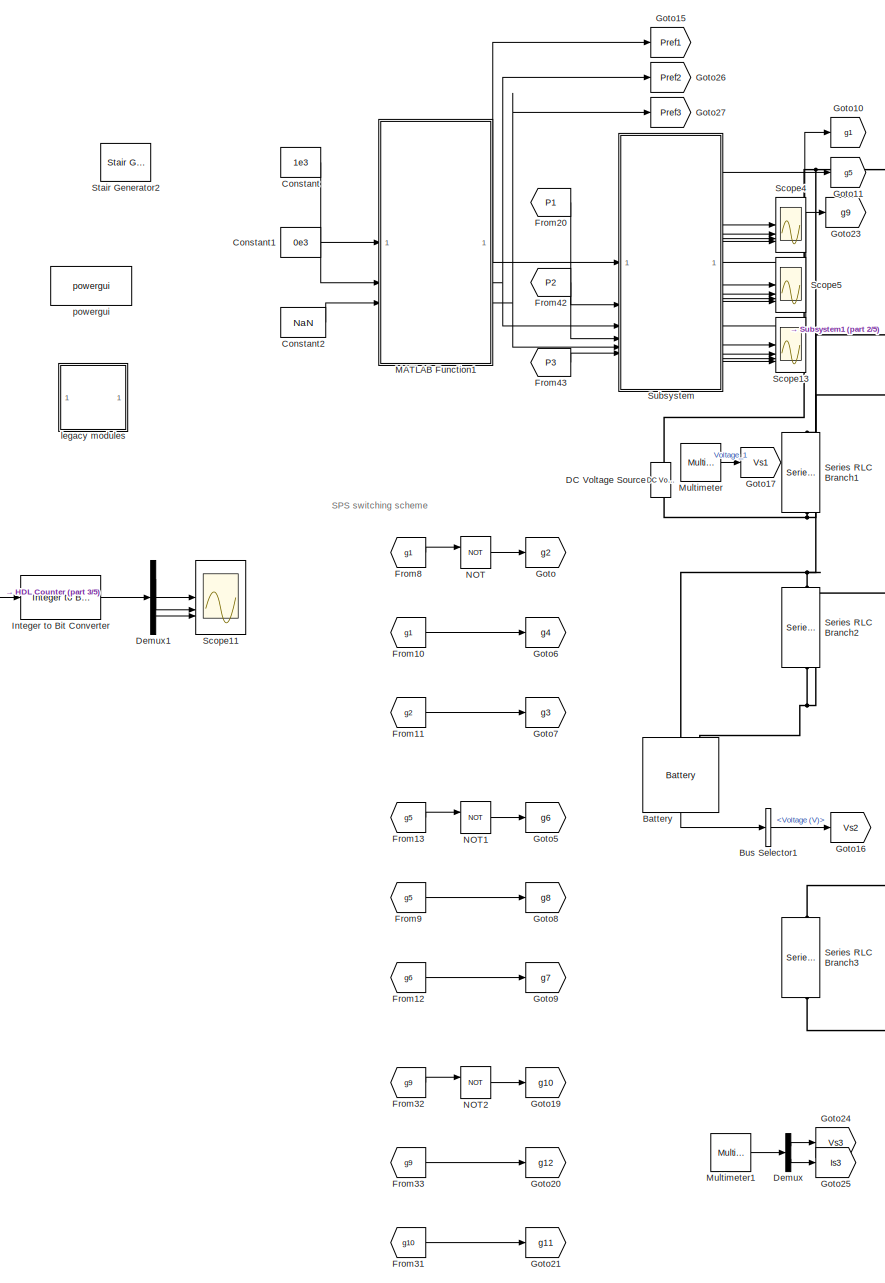
[diagram: root canvas - part 1/5, left side, full height]
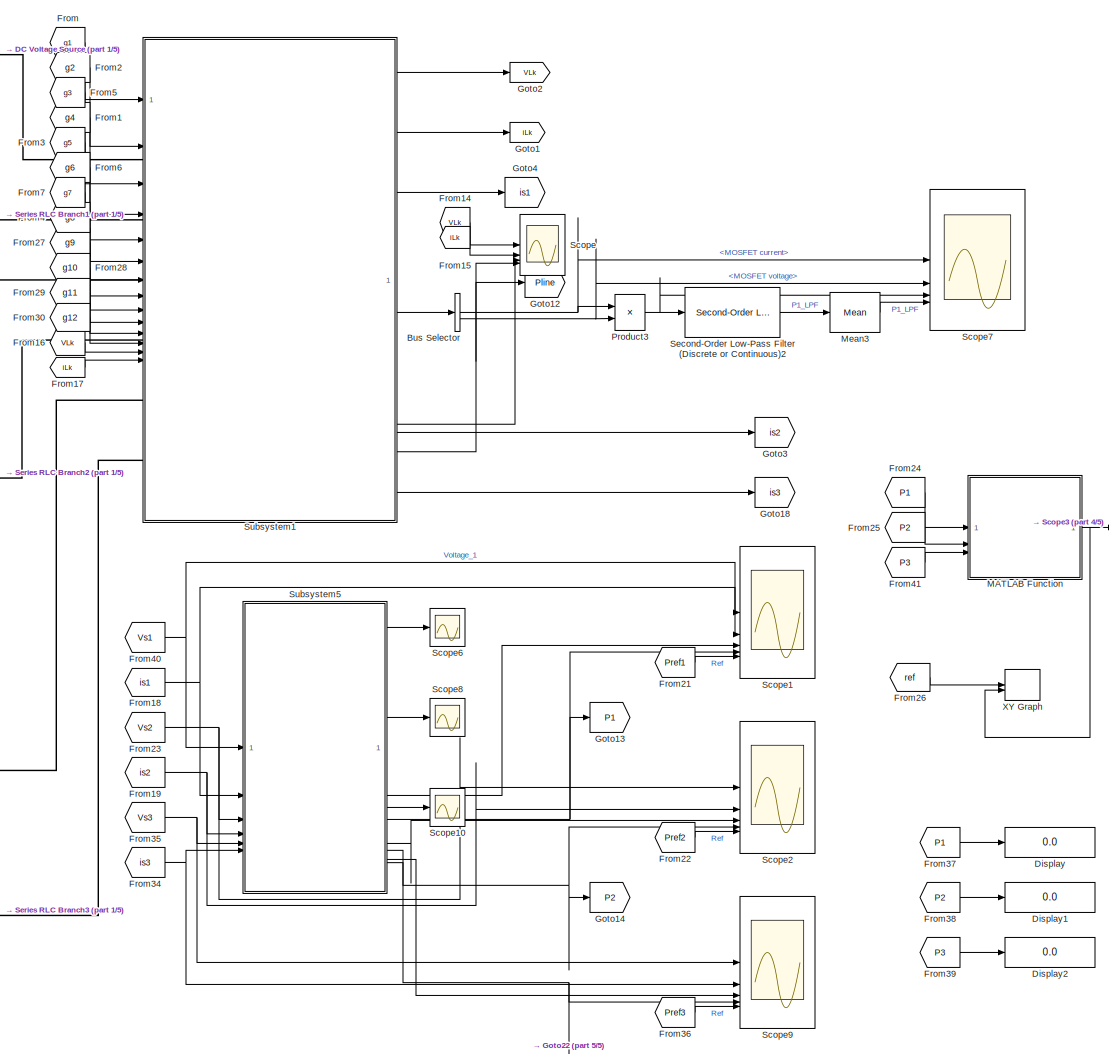
[diagram: root canvas - part 2/5, right side, full height]
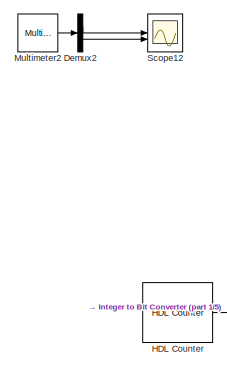
[diagram: root canvas - part 3/5, middle left region]
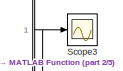
[diagram: root canvas - part 4/5, middle right region]
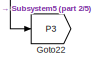
[diagram: root canvas - part 5/5, bottom right region]
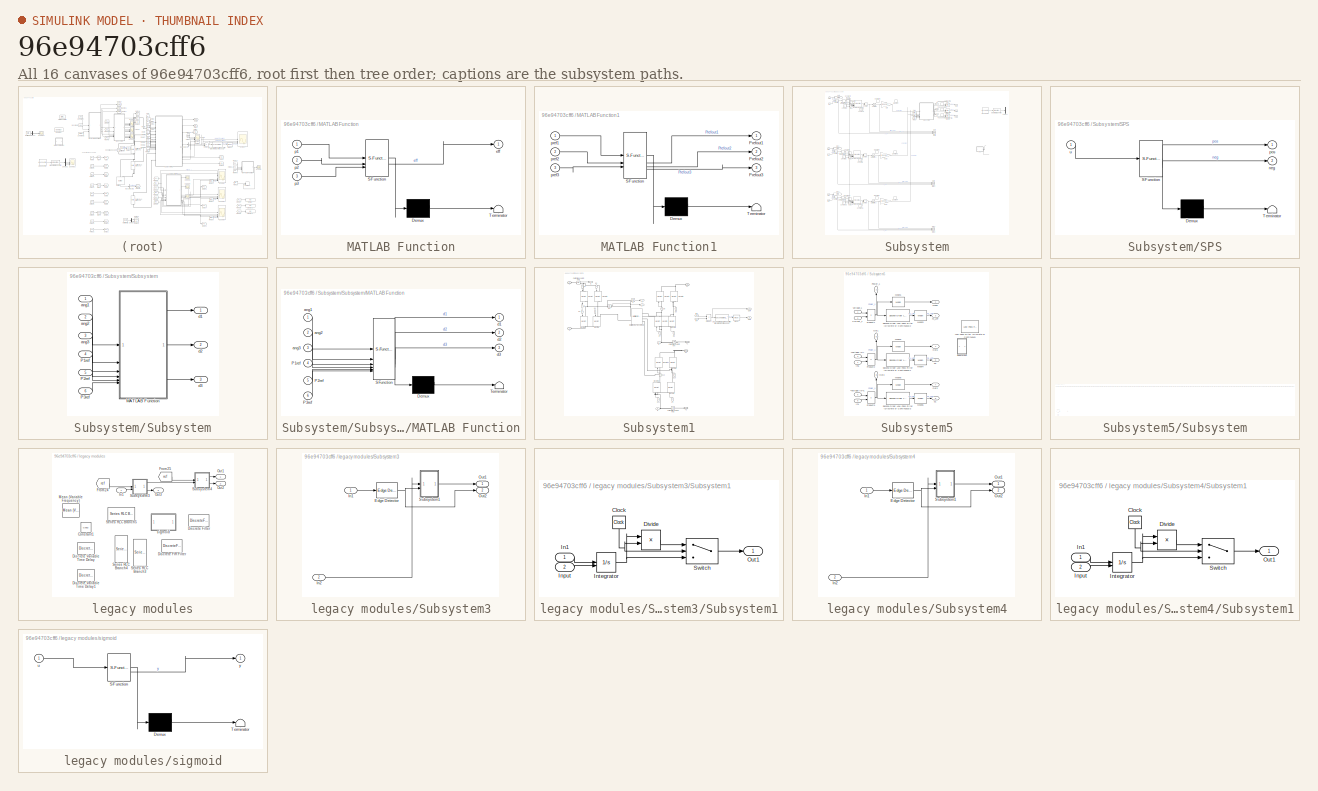
[diagram: thumbnail index - all 16 canvases of the model, root first then tree order]
MODEL slx_96e94703cff6
KIND model
CONFIG AbsTol = auto
CONFIG EnableMultiTasking = off
CONFIG FixedStep = auto
CONFIG MaxStep = auto
CONFIG MinStep = auto
CONFIG RelTol = 1e-3
CONFIG SampleTimeConstraint = Unconstrained
CONFIG SolverName = VariableStepAuto
CONFIG StartTime = 0.0
CONFIG StopTime = 30e-2
BLOCK [Reference] Battery  REF=spsBatteryLib/Battery
  LibrarySourceBlock = sps_lib/Sources/Battery
  NameLocation = right
  SourceBlock = spsBatteryLib/Battery
  SourceType = Battery
BLOCK [BusSelector] Bus Selector
  OutputSignals = MOSFET current,MOSFET voltage
BLOCK [BusSelector] Bus Selector1
  OutputSignals = Voltage (V)
BLOCK [Constant] Constant
  Value = 1e3
BLOCK [Constant] Constant1
  Value = 0e3
BLOCK [Constant] Constant2
  Value = NaN
BLOCK [Reference] DC Voltage Source  REF=spsDCVoltageSourceLib/DC Voltage Source
  LibrarySourceBlock = sps_lib/Sources/DC Voltage Source
  SourceBlock = spsDCVoltageSourceLib/DC Voltage Source
  SourceType = DC Voltage Source
BLOCK [Demux] Demux
  Outputs = 2
BLOCK [Demux] Demux1
  Outputs = 3
BLOCK [Demux] Demux2
  Outputs = 2
BLOCK [Display] Display
  Decimation = 1
BLOCK [Display] Display1
  Decimation = 1
BLOCK [Display] Display2
  Decimation = 1
BLOCK [From] From
  GotoTag = g1
BLOCK [From] From1
  GotoTag = g4
BLOCK [From] From10
  GotoTag = g1
BLOCK [From] From11
  GotoTag = g2
BLOCK [From] From12
  GotoTag = g6
BLOCK [From] From13
  GotoTag = g5
BLOCK [From] From14
  GotoTag = VLk
BLOCK [From] From15
  GotoTag = iLk
BLOCK [From] From16
  GotoTag = VLk
BLOCK [From] From17
  GotoTag = iLk
BLOCK [From] From18
  GotoTag = is1
BLOCK [From] From19
  GotoTag = is2
BLOCK [From] From2
  GotoTag = g2
BLOCK [From] From20
  GotoTag = P1
BLOCK [From] From21
  GotoTag = Pref1
  NameLocation = top
BLOCK [From] From22
  GotoTag = Pref2
  NameLocation = top
BLOCK [From] From23
  GotoTag = Vs2
BLOCK [From] From24
  GotoTag = P1
BLOCK [From] From25
  GotoTag = P2
BLOCK [From] From26
  GotoTag = ref
BLOCK [From] From27
  GotoTag = g9
BLOCK [From] From28
  GotoTag = g10
BLOCK [From] From29
  GotoTag = g11
BLOCK [From] From3
  GotoTag = g5
BLOCK [From] From30
  GotoTag = g12
BLOCK [From] From31
  GotoTag = g10
BLOCK [From] From32
  GotoTag = g9
BLOCK [From] From33
  GotoTag = g9
BLOCK [From] From34
  GotoTag = is3
BLOCK [From] From35
  GotoTag = Vs3
BLOCK [From] From36
  GotoTag = Pref3
  NameLocation = top
BLOCK [From] From37
  GotoTag = P1
BLOCK [From] From38
  GotoTag = P2
BLOCK [From] From39
  GotoTag = P3
BLOCK [From] From4
  GotoTag = g8
BLOCK [From] From40
  GotoTag = Vs1
BLOCK [From] From41
  GotoTag = P3
BLOCK [From] From42
  GotoTag = P2
BLOCK [From] From43
  GotoTag = P3
BLOCK [From] From5
  GotoTag = g3
BLOCK [From] From6
  GotoTag = g6
BLOCK [From] From7
  GotoTag = g7
BLOCK [From] From8
  GotoTag = g1
BLOCK [From] From9
  GotoTag = g5
BLOCK [Goto] Goto
  GotoTag = g2
BLOCK [Goto] Goto1
  GotoTag = iLk
BLOCK [Goto] Goto10
  GotoTag = g1
BLOCK [Goto] Goto11
  GotoTag = g5
BLOCK [Goto] Goto12
  GotoTag = Pline
BLOCK [Goto] Goto13
  GotoTag = P1
  NameLocation = top
BLOCK [Goto] Goto14
  GotoTag = P2
BLOCK [Goto] Goto15
  GotoTag = Pref1
BLOCK [Goto] Goto16
  GotoTag = Vs2
BLOCK [Goto] Goto17
  GotoTag = Vs1
BLOCK [Goto] Goto18
  GotoTag = is3
BLOCK [Goto] Goto19
  GotoTag = g10
BLOCK [Goto] Goto2
  GotoTag = VLk
BLOCK [Goto] Goto20
  GotoTag = g12
BLOCK [Goto] Goto21
  GotoTag = g11
BLOCK [Goto] Goto22
  GotoTag = P3
BLOCK [Goto] Goto23
  GotoTag = g9
BLOCK [Goto] Goto24
  GotoTag = Vs3
BLOCK [Goto] Goto25
  GotoTag = Is3
BLOCK [Goto] Goto26
  GotoTag = Pref2
BLOCK [Goto] Goto27
  GotoTag = Pref3
BLOCK [Goto] Goto3
  GotoTag = is2
BLOCK [Goto] Goto4
  GotoTag = is1
BLOCK [Goto] Goto5
  GotoTag = g6
BLOCK [Goto] Goto6
  GotoTag = g4
BLOCK [Goto] Goto7
  GotoTag = g3
BLOCK [Goto] Goto8
  GotoTag = g8
BLOCK [Goto] Goto9
  GotoTag = g7
BLOCK [Reference] HDL Counter  REF=hdlsllib/Sources/HDL Counter
  SourceBlock = hdlsllib/Sources/HDL Counter
  SourceType = HDL Counter
BLOCK [Reference] Integer to Bit Converter  REF=simulink/Logic and Bit
Operations/Integer to Bit
Converter
  SourceBlock = simulink/Logic and Bit\nOperations/Integer to Bit\nConverter
  SourceType = Integer to Bit Converter
BLOCK [SubSystem] MATLAB Function
  ErrorFcn = Stateflow.Translate.translate
  LibrarySourceBlock = simulink/User-Defined\nFunctions/MATLAB Function
  PermitHierarchicalResolution = ExplicitOnly
  SFBlockType = MATLAB Function
  TreatAsAtomicUnit = on
BLOCK [Demux] MATLAB Function/ Demux 
  Outputs = 1
BLOCK [S-Function] MATLAB Function/ SFunction 
  EnableBusSupport = on
  FunctionName = sf_sfun
  PortCounts = [3 2]
  SFcnIsStateOwnerBlock = off
  SFunctionDeploymentMode = off
  Tag = Stateflow S-Function 3
BLOCK [Terminator] MATLAB Function/ Terminator 
BLOCK [Outport] MATLAB Function/eff
BLOCK [Inport] MATLAB Function/p1
BLOCK [Inport] MATLAB Function/p2
  Port = 2
BLOCK [Inport] MATLAB Function/p3
  Port = 3
BLOCK [SubSystem] MATLAB Function1
  ErrorFcn = Stateflow.Translate.translate
  LibrarySourceBlock = simulink/User-Defined\nFunctions/MATLAB Function
  PermitHierarchicalResolution = ExplicitOnly
  SFBlockType = MATLAB Function
  TreatAsAtomicUnit = on
BLOCK [Demux] MATLAB Function1/ Demux 
  Outputs = 1
BLOCK [S-Function] MATLAB Function1/ SFunction 
  EnableBusSupport = on
  FunctionName = sf_sfun
  PortCounts = [3 4]
  SFcnIsStateOwnerBlock = off
  SFunctionDeploymentMode = off
  Tag = Stateflow S-Function 5
BLOCK [Terminator] MATLAB Function1/ Terminator 
BLOCK [Outport] MATLAB Function1/Prefout1
BLOCK [Outport] MATLAB Function1/Prefout2
  Port = 2
BLOCK [Outport] MATLAB Function1/Prefout3
  Port = 3
BLOCK [Inport] MATLAB Function1/pref1
BLOCK [Inport] MATLAB Function1/pref2
  Port = 2
BLOCK [Inport] MATLAB Function1/pref3
  Port = 3
BLOCK [Reference] Mean3  REF=spsMeanLib/Mean
  LibrarySourceBlock = sps_lib/Sensors and Measurements/Mean
  SourceBlock = spsMeanLib/Mean
  SourceType = Mean
BLOCK [Reference] Multimeter  REF=spsMultimeterLib/Multimeter
  LibrarySourceBlock = sps_lib/Sensors and Measurements/Multimeter
  SourceBlock = spsMultimeterLib/Multimeter
  SourceType = Multimeter
BLOCK [Reference] Multimeter1  REF=spsMultimeterLib/Multimeter
  LibrarySourceBlock = sps_lib/Sensors and Measurements/Multimeter
  SourceBlock = spsMultimeterLib/Multimeter
  SourceType = Multimeter
BLOCK [Reference] Multimeter2  REF=spsMultimeterLib/Multimeter
  LibrarySourceBlock = sps_lib/Sensors and Measurements/Multimeter
  SourceBlock = spsMultimeterLib/Multimeter
  SourceType = Multimeter
BLOCK [Logic] NOT
  AllPortsSameDT = off
  IconShape = distinctive
  Operator = NOT
  OutDataTypeStr = boolean
BLOCK [Logic] NOT1
  AllPortsSameDT = off
  IconShape = distinctive
  Operator = NOT
  OutDataTypeStr = boolean
BLOCK [Logic] NOT2
  AllPortsSameDT = off
  IconShape = distinctive
  Operator = NOT
  OutDataTypeStr = boolean
BLOCK [Product] Product3
  NameLocation = top
BLOCK [Scope] Scope
  Floating = off
  NumInputPorts = 4
  ScopeSpecificationString = Simulink.scopes.TimeScopeBlockCfg('CurrentConfiguration', extmgr.ConfigurationSet(extmgr.Configuration('Core','General UI',true),extmgr.Configuration('Core','Source UI',true),extmgr.Configuration('Sources','WiredSimulink',true),extmgr.Configuration('Visuals','Time Domain',true,'SerializedDisplays',{struct('MinYLimReal','-380.0294','MaxYLimReal','368.88399','YLabelReal','','MinYLimMag',' 0.00000','...<+3384ch>
BLOCK [Scope] Scope1
  Floating = off
  NumInputPorts = 5
  ScopeSpecificationString = Simulink.scopes.TimeScopeBlockCfg('CurrentConfiguration', extmgr.ConfigurationSet(extmgr.Configuration('Core','General UI',true),extmgr.Configuration('Core','Source UI',true),extmgr.Configuration('Sources','WiredSimulink',true,'DataLoggingVariableName','ScopeData1'),extmgr.Configuration('Visuals','Time Domain',true,'SerializedDisplays',{struct('MinYLimReal','20.00000','MaxYLimReal','220.00000','YL...<+3492ch>
BLOCK [Scope] Scope10
  Floating = off
  NumInputPorts = 1
  ScopeSpecificationString = Simulink.scopes.TimeScopeBlockCfg('CurrentConfiguration', extmgr.ConfigurationSet(extmgr.Configuration('Core','General UI',true),extmgr.Configuration('Core','Source UI',true),extmgr.Configuration('Sources','WiredSimulink',true,'DataLoggingVariableName','ScopeData2'),extmgr.Configuration('Visuals','Time Domain',true,'SerializedDisplays',{struct('MinYLimReal','-4761.9698','MaxYLimReal','13728.61809'...<+1489ch>
BLOCK [Scope] Scope11
  Floating = off
  NumInputPorts = 3
  ScopeSpecificationString = Simulink.scopes.TimeScopeBlockCfg('CurrentConfiguration', extmgr.ConfigurationSet(extmgr.Configuration('Core','General UI',true),extmgr.Configuration('Core','Source UI',true),extmgr.Configuration('Sources','WiredSimulink',true,'DataLoggingVariableName','ScopeData3'),extmgr.Configuration('Visuals','Time Domain',true,'SerializedDisplays',{struct('MinYLimReal','-0.125','MaxYLimReal','1.125','YLabelRe...<+2772ch>
BLOCK [Scope] Scope12
  Floating = off
  NumInputPorts = 2
  ScopeSpecificationString = Simulink.scopes.TimeScopeBlockCfg('CurrentConfiguration', extmgr.ConfigurationSet(extmgr.Configuration('Core','General UI',true),extmgr.Configuration('Core','Source UI',true),extmgr.Configuration('Sources','WiredSimulink',true,'DataLoggingVariableName','ScopeData1'),extmgr.Configuration('Visuals','Time Domain',true,'SerializedDisplays',{struct('MinYLimReal','-150.80963','MaxYLimReal','150.76613','...<+2053ch>
BLOCK [Scope] Scope13
  Floating = off
  NumInputPorts = 4
  ScopeSpecificationString = Simulink.scopes.TimeScopeBlockCfg('CurrentConfiguration', extmgr.ConfigurationSet(extmgr.Configuration('Core','General UI',true),extmgr.Configuration('Core','Source UI',true),extmgr.Configuration('Sources','WiredSimulink',true,'DataLoggingVariableName','ScopeData3'),extmgr.Configuration('Visuals','Time Domain',true,'SerializedDisplays',{struct('MinYLimReal','-0.0000006','MaxYLimReal','0.0000056','...<+3511ch>
BLOCK [Scope] Scope2
  Floating = off
  NumInputPorts = 5
  ScopeSpecificationString = Simulink.scopes.TimeScopeBlockCfg('CurrentConfiguration', extmgr.ConfigurationSet(extmgr.Configuration('Core','General UI',true),extmgr.Configuration('Core','Source UI',true),extmgr.Configuration('Sources','WiredSimulink',true,'DataLoggingVariableName','ScopeData2'),extmgr.Configuration('Visuals','Time Domain',true,'SerializedDisplays',{struct('MinYLimReal','-4.88022','MaxYLimReal','125.19744','YL...<+3491ch>
BLOCK [Scope] Scope3
  Floating = off
  NumInputPorts = 1
  ScopeSpecificationString = Simulink.scopes.TimeScopeBlockCfg('CurrentConfiguration', extmgr.ConfigurationSet(extmgr.Configuration('Core','General UI',true),extmgr.Configuration('Core','Source UI',true),extmgr.Configuration('Sources','WiredSimulink',true,'DataLoggingVariableName','ScopeData3'),extmgr.Configuration('Visuals','Time Domain',true,'SerializedDisplays',{struct('MinYLimReal','16.74282','MaxYLimReal','94.42324','YLa...<+1450ch>
BLOCK [Scope] Scope4
  Floating = off
  NumInputPorts = 4
  ScopeSpecificationString = Simulink.scopes.TimeScopeBlockCfg('CurrentConfiguration', extmgr.ConfigurationSet(extmgr.Configuration('Core','General UI',true),extmgr.Configuration('Core','Source UI',true),extmgr.Configuration('Sources','WiredSimulink',true,'DataLoggingVariableName','ScopeData1'),extmgr.Configuration('Visuals','Time Domain',true,'SerializedDisplays',{struct('MinYLimReal','0.0000017','MaxYLimReal','0.00000218','...<+3486ch>
BLOCK [Scope] Scope5
  Floating = off
  NumInputPorts = 4
  ScopeSpecificationString = Simulink.scopes.TimeScopeBlockCfg('CurrentConfiguration', extmgr.ConfigurationSet(extmgr.Configuration('Core','General UI',true),extmgr.Configuration('Core','Source UI',true),extmgr.Configuration('Sources','WiredSimulink',true,'DataLoggingVariableName','ScopeData2'),extmgr.Configuration('Visuals','Time Domain',true,'SerializedDisplays',{struct('MinYLimReal','-0.0000006','MaxYLimReal','0.0000056','...<+3507ch>
BLOCK [Scope] Scope6
  Floating = off
  NumInputPorts = 1
  ScopeSpecificationString = Simulink.scopes.TimeScopeBlockCfg('CurrentConfiguration', extmgr.ConfigurationSet(extmgr.Configuration('Core','General UI',true),extmgr.Configuration('Core','Source UI',true),extmgr.Configuration('Sources','WiredSimulink',true,'DataLoggingVariableName','ScopeData2'),extmgr.Configuration('Visuals','Time Domain',true,'SerializedDisplays',{struct('MinYLimReal','-3935.45201','MaxYLimReal','4599.90212'...<+1475ch>
BLOCK [Scope] Scope7
  Floating = off
  NameLocation = top
  NumInputPorts = 4
  ScopeSpecificationString = Simulink.scopes.TimeScopeBlockCfg('CurrentConfiguration', extmgr.ConfigurationSet(extmgr.Configuration('Core','General UI',true),extmgr.Configuration('Core','Source UI',true),extmgr.Configuration('Sources','WiredSimulink',true,'DataLoggingVariableName','ScopeData1'),extmgr.Configuration('Visuals','Time Domain',true,'SerializedDisplays',{struct('MinYLimReal','-81.34517','MaxYLimReal','108.30549','Y...<+3444ch>
BLOCK [Scope] Scope8
  Floating = off
  NumInputPorts = 1
  ScopeSpecificationString = Simulink.scopes.TimeScopeBlockCfg('CurrentConfiguration', extmgr.ConfigurationSet(extmgr.Configuration('Core','General UI',true),extmgr.Configuration('Core','Source UI',true),extmgr.Configuration('Sources','WiredSimulink',true,'DataLoggingVariableName','ScopeData1'),extmgr.Configuration('Visuals','Time Domain',true,'SerializedDisplays',{struct('MinYLimReal','-4761.9698','MaxYLimReal','13728.61809'...<+1489ch>
BLOCK [Scope] Scope9
  Floating = off
  NumInputPorts = 5
  ScopeSpecificationString = Simulink.scopes.TimeScopeBlockCfg('CurrentConfiguration', extmgr.ConfigurationSet(extmgr.Configuration('Core','General UI',true),extmgr.Configuration('Core','Source UI',true),extmgr.Configuration('Sources','WiredSimulink',true,'DataLoggingVariableName','ScopeData1'),extmgr.Configuration('Visuals','Time Domain',true,'SerializedDisplays',{struct('MinYLimReal','-57.155','MaxYLimReal','399.34517','YLa...<+3482ch>
BLOCK [Reference] Second-Order Low-Pass Filter (Discrete or Continuous)2  REF=eeGeneralControl/Second-Order
Low-Pass Filter
(Discrete or Continuous)
  LibrarySourceBlock = ee_sl_lib/General Control/Second-Order\nLow-Pass Filter\n(Discrete or Continuous)
  SourceBlock = eeGeneralControl/Second-Order\nLow-Pass Filter\n(Discrete or Continuous)
  SourceType = Second-Order Low-Pass Filter (Discrete or Continuous)
BLOCK [Reference] Series RLC Branch1  REF=spsSeriesRLCBranchLib/Series RLC Branch
  LibrarySourceBlock = sps_lib/Passives/Series RLC Branch
  NameLocation = left
  SourceBlock = spsSeriesRLCBranchLib/Series RLC Branch
  SourceType = Series RLC Branch
BLOCK [Reference] Series RLC Branch2  REF=spsSeriesRLCBranchLib/Series RLC Branch
  LibrarySourceBlock = sps_lib/Passives/Series RLC Branch
  NameLocation = left
  SourceBlock = spsSeriesRLCBranchLib/Series RLC Branch
  SourceType = Series RLC Branch
BLOCK [Reference] Series RLC Branch3  REF=spsSeriesRLCBranchLib/Series RLC Branch
  LibrarySourceBlock = sps_lib/Passives/Series RLC Branch
  NameLocation = left
  SourceBlock = spsSeriesRLCBranchLib/Series RLC Branch
  SourceType = Series RLC Branch
BLOCK [Reference] Stair Generator2  REF=spsStairGeneratorLib/Stair
Generator
  Commented = on
  LibrarySourceBlock = sps_lib/Sources/Signal Generator Sources/Stair\nGenerator
  SourceBlock = spsStairGeneratorLib/Stair\nGenerator
  SourceType = Stair Generator
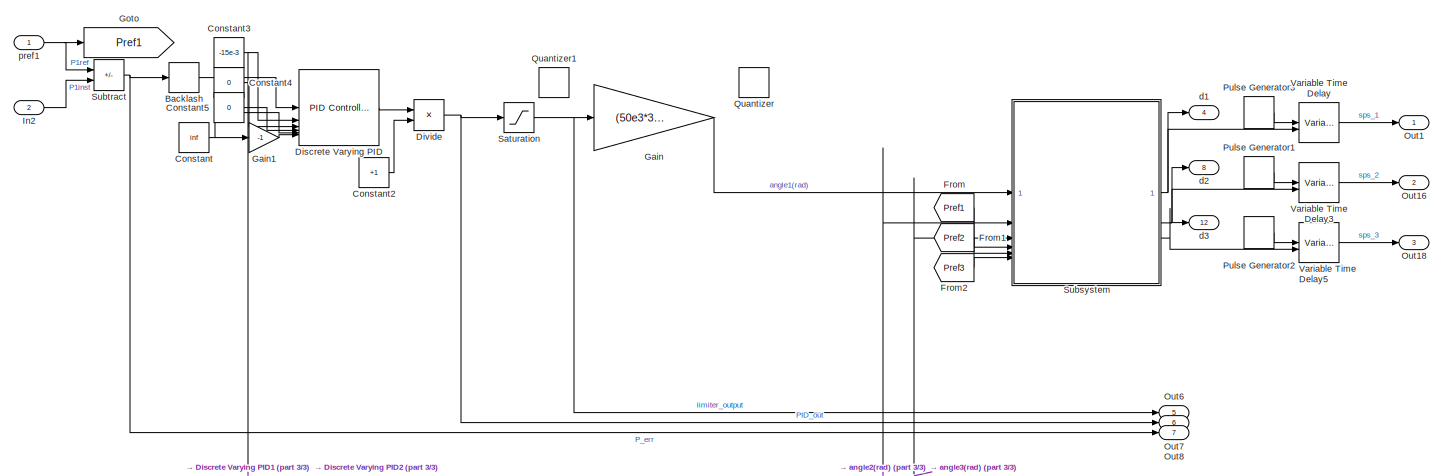
[diagram: Subsystem - part 1/3, top center region]
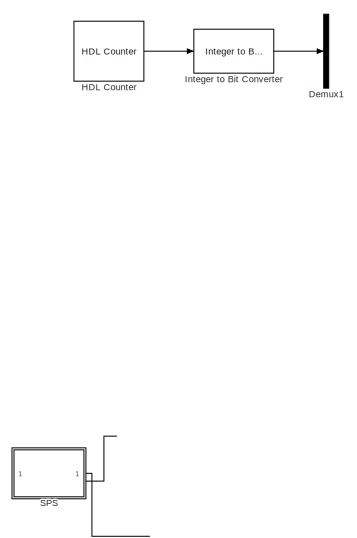
[diagram: Subsystem - part 2/3, top right region]
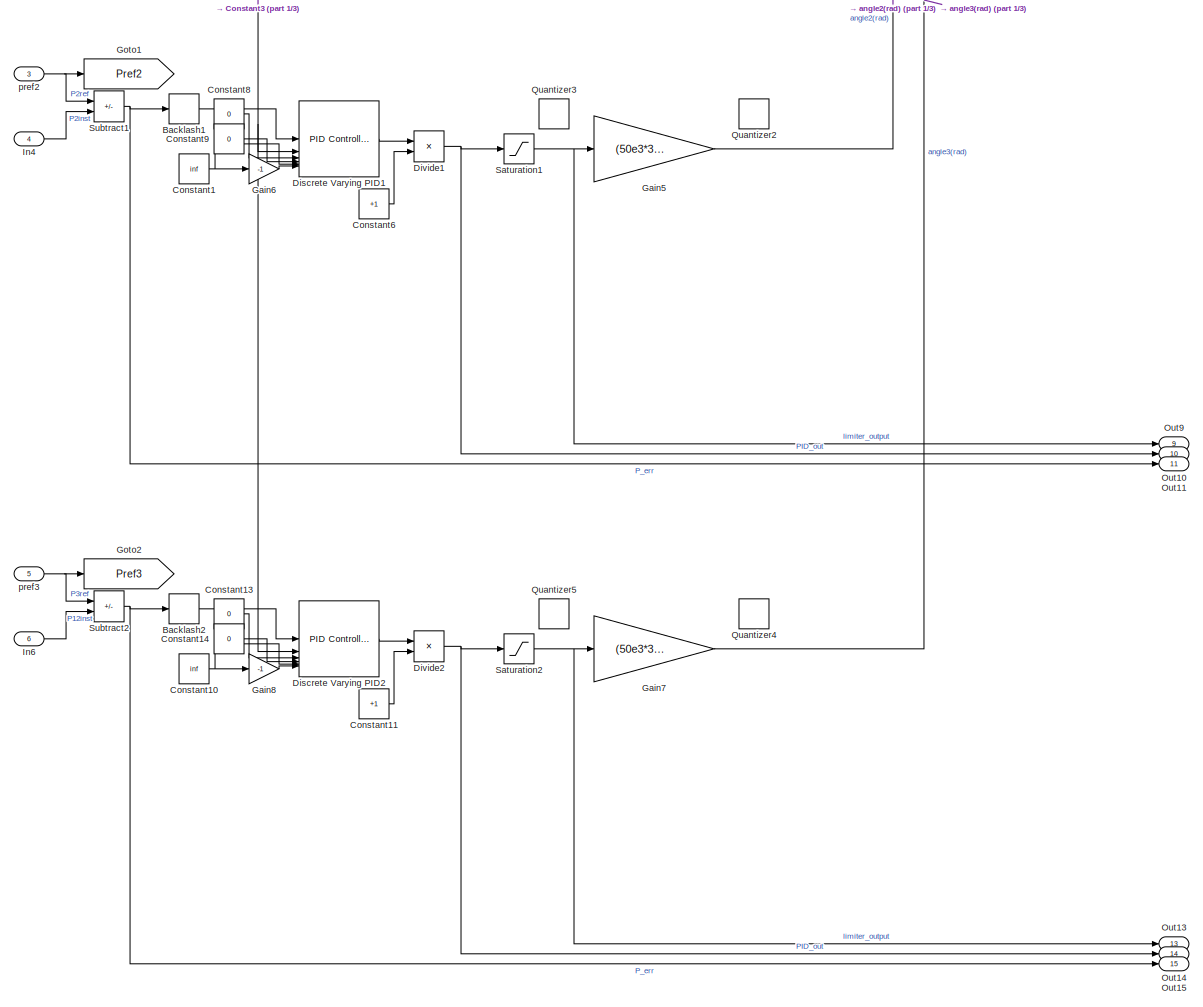
[diagram: Subsystem - part 3/3, bottom left region]
BLOCK [SubSystem] Subsystem
BLOCK [Backlash] Subsystem/Backlash
  BacklashWidth = 0
BLOCK [Backlash] Subsystem/Backlash1
  BacklashWidth = 0
BLOCK [Backlash] Subsystem/Backlash2
  BacklashWidth = 0
BLOCK [Constant] Subsystem/Constant
  Value = inf
BLOCK [Constant] Subsystem/Constant1
  Value = inf
BLOCK [Constant] Subsystem/Constant10
  Value = inf
BLOCK [Constant] Subsystem/Constant11
  Value = +1
BLOCK [Constant] Subsystem/Constant13
  Value = 0
BLOCK [Constant] Subsystem/Constant14
  Value = 0
BLOCK [Constant] Subsystem/Constant2
  Value = +1
BLOCK [Constant] Subsystem/Constant3
  Value = -15e-3
BLOCK [Constant] Subsystem/Constant4
  Value = 0
BLOCK [Constant] Subsystem/Constant5
  Value = 0
BLOCK [Constant] Subsystem/Constant6
  Value = +1
BLOCK [Constant] Subsystem/Constant8
  Value = 0
BLOCK [Constant] Subsystem/Constant9
  Value = 0
BLOCK [Demux] Subsystem/Demux1
  Commented = on
  Outputs = 3
BLOCK [Reference] Subsystem/Discrete Varying PID  REF=slpidlib/PID Controller
  LibrarySourceBlock = cstblocks/Linear Parameter Varying/Discrete Varying PID
  NameLocation = right
  SourceBlock = slpidlib/PID Controller
  SourceType = PID 1dof
BLOCK [Reference] Subsystem/Discrete Varying PID1  REF=slpidlib/PID Controller
  LibrarySourceBlock = cstblocks/Linear Parameter Varying/Discrete Varying PID
  NameLocation = right
  SourceBlock = slpidlib/PID Controller
  SourceType = PID 1dof
BLOCK [Reference] Subsystem/Discrete Varying PID2  REF=slpidlib/PID Controller
  LibrarySourceBlock = cstblocks/Linear Parameter Varying/Discrete Varying PID
  NameLocation = right
  SourceBlock = slpidlib/PID Controller
  SourceType = PID 1dof
BLOCK [Product] Subsystem/Divide
  Inputs = */
BLOCK [Product] Subsystem/Divide1
  Inputs = */
BLOCK [Product] Subsystem/Divide2
  Inputs = */
BLOCK [From] Subsystem/From
  GotoTag = Pref1
BLOCK [From] Subsystem/From1
  GotoTag = Pref2
BLOCK [From] Subsystem/From2
  GotoTag = Pref3
BLOCK [Gain] Subsystem/Gain
  Gain = (50e3*360/90)^-1
BLOCK [Gain] Subsystem/Gain1
  Gain = -1
BLOCK [Gain] Subsystem/Gain5
  Gain = (50e3*360/90)^-1
BLOCK [Gain] Subsystem/Gain6
  Gain = -1
BLOCK [Gain] Subsystem/Gain7
  Gain = (50e3*360/90)^-1
BLOCK [Gain] Subsystem/Gain8
  Gain = -1
BLOCK [Goto] Subsystem/Goto
  GotoTag = Pref1
  IconDisplay = Tag and signal name
BLOCK [Goto] Subsystem/Goto1
  GotoTag = Pref2
  IconDisplay = Tag and signal name
BLOCK [Goto] Subsystem/Goto2
  GotoTag = Pref3
  IconDisplay = Tag and signal name
BLOCK [Reference] Subsystem/HDL Counter  REF=hdlsllib/Sources/HDL Counter
  Commented = on
  SourceBlock = hdlsllib/Sources/HDL Counter
  SourceType = HDL Counter
BLOCK [Inport] Subsystem/In2
  IconDisplay = Port number and signal name
  Port = 2
BLOCK [Inport] Subsystem/In4
  IconDisplay = Port number and signal name
  Port = 4
BLOCK [Inport] Subsystem/In6
  IconDisplay = Port number and signal name
  Port = 6
BLOCK [Reference] Subsystem/Integer to Bit Converter  REF=simulink/Logic and Bit
Operations/Integer to Bit
Converter
  Commented = on
  SourceBlock = simulink/Logic and Bit\nOperations/Integer to Bit\nConverter
  SourceType = Integer to Bit Converter
BLOCK [Outport] Subsystem/Out1
  IconDisplay = Port number and signal name
BLOCK [Outport] Subsystem/Out10
  IconDisplay = Port number and signal name
  Port = 10
BLOCK [Outport] Subsystem/Out11
  IconDisplay = Port number and signal name
  Port = 11
BLOCK [Outport] Subsystem/Out13
  IconDisplay = Port number and signal name
  Port = 13
BLOCK [Outport] Subsystem/Out14
  IconDisplay = Port number and signal name
  Port = 14
BLOCK [Outport] Subsystem/Out15
  IconDisplay = Port number and signal name
  Port = 15
BLOCK [Outport] Subsystem/Out16
  IconDisplay = Port number and signal name
  Port = 2
BLOCK [Outport] Subsystem/Out18
  IconDisplay = Port number and signal name
  Port = 3
BLOCK [Outport] Subsystem/Out6
  IconDisplay = Port number and signal name
  Port = 5
BLOCK [Outport] Subsystem/Out7
  IconDisplay = Port number and signal name
  Port = 6
BLOCK [Outport] Subsystem/Out8
  IconDisplay = Port number and signal name
  Port = 7
BLOCK [Outport] Subsystem/Out9
  IconDisplay = Port number and signal name
  Port = 9
BLOCK [DiscretePulseGenerator] Subsystem/Pulse Generator1
  Period = 1/50e3
  PulseType = Time based
  PulseWidth = 50
BLOCK [DiscretePulseGenerator] Subsystem/Pulse Generator2
  Period = 1/50e3
  PulseType = Time based
  PulseWidth = 50
BLOCK [DiscretePulseGenerator] Subsystem/Pulse Generator3
  Period = 1/50e3
  PulseType = Time based
  PulseWidth = 50
BLOCK [Quantizer] Subsystem/Quantizer
  Commented = on
  QuantizationInterval = 1e-5
BLOCK [Quantizer] Subsystem/Quantizer1
  Commented = on
  QuantizationInterval = 1e-2
BLOCK [Quantizer] Subsystem/Quantizer2
  Commented = on
  QuantizationInterval = 1e-5
BLOCK [Quantizer] Subsystem/Quantizer3
  Commented = on
  QuantizationInterval = 1e-2
BLOCK [Quantizer] Subsystem/Quantizer4
  Commented = on
  QuantizationInterval = 1e-5
BLOCK [Quantizer] Subsystem/Quantizer5
  Commented = on
  QuantizationInterval = 1e-2
BLOCK [SubSystem] Subsystem/SPS
  Commented = on
  ErrorFcn = Stateflow.Translate.translate
  LibrarySourceBlock = simulink/User-Defined\nFunctions/MATLAB Function
  PermitHierarchicalResolution = ExplicitOnly
  SFBlockType = MATLAB Function
  TreatAsAtomicUnit = on
BLOCK [Demux] Subsystem/SPS/ Demux 
  Outputs = 1
BLOCK [S-Function] Subsystem/SPS/ SFunction 
  EnableBusSupport = on
  FunctionName = sf_sfun
  PortCounts = [1 3]
  SFcnIsStateOwnerBlock = off
  SFunctionDeploymentMode = off
  Tag = Stateflow S-Function 1
BLOCK [Terminator] Subsystem/SPS/ Terminator 
BLOCK [Outport] Subsystem/SPS/neg
  Port = 2
BLOCK [Outport] Subsystem/SPS/pos
BLOCK [Inport] Subsystem/SPS/u
BLOCK [Saturate] Subsystem/Saturation
  LowerLimit = 0
  UpperLimit = 1
BLOCK [Saturate] Subsystem/Saturation1
  LowerLimit = 0
  UpperLimit = 1
BLOCK [Saturate] Subsystem/Saturation2
  LowerLimit = 0
  UpperLimit = 1
BLOCK [SubSystem] Subsystem/Subsystem
BLOCK [SubSystem] Subsystem/Subsystem/MATLAB Function
  ErrorFcn = Stateflow.Translate.translate
  LibrarySourceBlock = simulink/User-Defined\nFunctions/MATLAB Function
  PermitHierarchicalResolution = ExplicitOnly
  SFBlockType = MATLAB Function
  TreatAsAtomicUnit = on
BLOCK [Demux] Subsystem/Subsystem/MATLAB Function/ Demux 
  Outputs = 1
BLOCK [S-Function] Subsystem/Subsystem/MATLAB Function/ SFunction 
  EnableBusSupport = on
  FunctionName = sf_sfun
  PortCounts = [6 4]
  SFcnIsStateOwnerBlock = off
  SFunctionDeploymentMode = off
  Tag = Stateflow S-Function 4
BLOCK [Terminator] Subsystem/Subsystem/MATLAB Function/ Terminator 
BLOCK [Inport] Subsystem/Subsystem/MATLAB Function/P1ref
  Port = 4
BLOCK [Inport] Subsystem/Subsystem/MATLAB Function/P2ref
  Port = 5
BLOCK [Inport] Subsystem/Subsystem/MATLAB Function/P3ref
  Port = 6
BLOCK [Inport] Subsystem/Subsystem/MATLAB Function/ang1
BLOCK [Inport] Subsystem/Subsystem/MATLAB Function/ang2
  Port = 2
BLOCK [Inport] Subsystem/Subsystem/MATLAB Function/ang3
  Port = 3
BLOCK [Outport] Subsystem/Subsystem/MATLAB Function/d1
BLOCK [Outport] Subsystem/Subsystem/MATLAB Function/d2
  Port = 2
BLOCK [Outport] Subsystem/Subsystem/MATLAB Function/d3
  Port = 3
BLOCK [Inport] Subsystem/Subsystem/P1ref
  Port = 4
BLOCK [Inport] Subsystem/Subsystem/P2ref
  Port = 5
BLOCK [Inport] Subsystem/Subsystem/P3ref
  Port = 6
BLOCK [Inport] Subsystem/Subsystem/ang1
BLOCK [Inport] Subsystem/Subsystem/ang2
  Port = 2
BLOCK [Inport] Subsystem/Subsystem/ang3
  Port = 3
BLOCK [Outport] Subsystem/Subsystem/d1
BLOCK [Outport] Subsystem/Subsystem/d2
  Port = 2
BLOCK [Outport] Subsystem/Subsystem/d3
  Port = 3
BLOCK [Sum] Subsystem/Subtract
  IconShape = rectangular
  Inputs = +-
BLOCK [Sum] Subsystem/Subtract1
  IconShape = rectangular
  Inputs = +-
BLOCK [Sum] Subsystem/Subtract2
  IconShape = rectangular
  Inputs = +-
BLOCK [VariableTransportDelay] Subsystem/Variable Time Delay
  MaximumDelay = 10
BLOCK [VariableTransportDelay] Subsystem/Variable Time Delay3
  MaximumDelay = 10
BLOCK [VariableTransportDelay] Subsystem/Variable Time Delay5
  MaximumDelay = 10
BLOCK [Outport] Subsystem/d1
  IconDisplay = Port number and signal name
  Port = 4
BLOCK [Outport] Subsystem/d2
  IconDisplay = Port number and signal name
  Port = 8
BLOCK [Outport] Subsystem/d3
  IconDisplay = Port number and signal name
  Port = 12
BLOCK [Inport] Subsystem/pref1
  IconDisplay = Port number and signal name
BLOCK [Inport] Subsystem/pref2
  IconDisplay = Port number and signal name
  Port = 3
BLOCK [Inport] Subsystem/pref3
  IconDisplay = Port number and signal name
  Port = 5
BLOCK [SubSystem] Subsystem1
BLOCK [PMIOPort] Subsystem1/+
  Side = Left
BLOCK [PMIOPort] Subsystem1/+1
  NameLocation = top
  Port = 3
  Side = Left
BLOCK [PMIOPort] Subsystem1/+2
  NameLocation = top
  Port = 5
  Side = Left
BLOCK [Reference] Subsystem1/Current Measurement  REF=spsCurrentMeasurementLib/Current Measurement
  LibrarySourceBlock = sps_lib/Sensors and Measurements/Current Measurement
  NameLocation = top
  SourceBlock = spsCurrentMeasurementLib/Current Measurement
  SourceType = Current Measurement
  UserDataPersistent = on
BLOCK [Reference] Subsystem1/Current Measurement1  REF=spsCurrentMeasurementLib/Current Measurement
  LibrarySourceBlock = sps_lib/Sensors and Measurements/Current Measurement
  SourceBlock = spsCurrentMeasurementLib/Current Measurement
  SourceType = Current Measurement
  UserDataPersistent = on
BLOCK [Reference] Subsystem1/Current Measurement2  REF=spsCurrentMeasurementLib/Current Measurement
  LibrarySourceBlock = sps_lib/Sensors and Measurements/Current Measurement
  NameLocation = top
  SourceBlock = spsCurrentMeasurementLib/Current Measurement
  SourceType = Current Measurement
  UserDataPersistent = on
BLOCK [Inport] Subsystem1/In3
  Port = 13
BLOCK [Inport] Subsystem1/In4
  Port = 14
BLOCK [Reference] Subsystem1/Mean  REF=spsMeanLib/Mean
  LibrarySourceBlock = sps_lib/Sensors and Measurements/Mean
  SourceBlock = spsMeanLib/Mean
  SourceType = Mean
BLOCK [Reference] Subsystem1/Mosfet  REF=spsMosfetLib/Mosfet
  LibrarySourceBlock = sps_lib/Power Electronics/Mosfet
  NameLocation = left
  SourceBlock = spsMosfetLib/Mosfet
  SourceType = Mosfet
BLOCK [Reference] Subsystem1/Mosfet1  REF=spsMosfetLib/Mosfet
  LibrarySourceBlock = sps_lib/Power Electronics/Mosfet
  NameLocation = left
  SourceBlock = spsMosfetLib/Mosfet
  SourceType = Mosfet
BLOCK [Reference] Subsystem1/Mosfet10  REF=spsMosfetLib/Mosfet
  LibrarySourceBlock = sps_lib/Power Electronics/Mosfet
  NameLocation = right
  SourceBlock = spsMosfetLib/Mosfet
  SourceType = Mosfet
BLOCK [Reference] Subsystem1/Mosfet11  REF=spsMosfetLib/Mosfet
  LibrarySourceBlock = sps_lib/Power Electronics/Mosfet
  NameLocation = right
  SourceBlock = spsMosfetLib/Mosfet
  SourceType = Mosfet
BLOCK [Reference] Subsystem1/Mosfet2  REF=spsMosfetLib/Mosfet
  LibrarySourceBlock = sps_lib/Power Electronics/Mosfet
  NameLocation = left
  SourceBlock = spsMosfetLib/Mosfet
  SourceType = Mosfet
BLOCK [Reference] Subsystem1/Mosfet3  REF=spsMosfetLib/Mosfet
  LibrarySourceBlock = sps_lib/Power Electronics/Mosfet
  NameLocation = left
  SourceBlock = spsMosfetLib/Mosfet
  SourceType = Mosfet
BLOCK [Reference] Subsystem1/Mosfet4  REF=spsMosfetLib/Mosfet
  LibrarySourceBlock = sps_lib/Power Electronics/Mosfet
  NameLocation = right
  SourceBlock = spsMosfetLib/Mosfet
  SourceType = Mosfet
BLOCK [Reference] Subsystem1/Mosfet5  REF=spsMosfetLib/Mosfet
  LibrarySourceBlock = sps_lib/Power Electronics/Mosfet
  NameLocation = right
  SourceBlock = spsMosfetLib/Mosfet
  SourceType = Mosfet
BLOCK [Reference] Subsystem1/Mosfet6  REF=spsMosfetLib/Mosfet
  LibrarySourceBlock = sps_lib/Power Electronics/Mosfet
  NameLocation = right
  SourceBlock = spsMosfetLib/Mosfet
  SourceType = Mosfet
BLOCK [Reference] Subsystem1/Mosfet7  REF=spsMosfetLib/Mosfet
  LibrarySourceBlock = sps_lib/Power Electronics/Mosfet
  NameLocation = right
  SourceBlock = spsMosfetLib/Mosfet
  SourceType = Mosfet
BLOCK [Reference] Subsystem1/Mosfet8  REF=spsMosfetLib/Mosfet
  LibrarySourceBlock = sps_lib/Power Electronics/Mosfet
  NameLocation = right
  SourceBlock = spsMosfetLib/Mosfet
  SourceType = Mosfet
BLOCK [Reference] Subsystem1/Mosfet9  REF=spsMosfetLib/Mosfet
  LibrarySourceBlock = sps_lib/Power Electronics/Mosfet
  NameLocation = right
  SourceBlock = spsMosfetLib/Mosfet
  SourceType = Mosfet
BLOCK [Reference] Subsystem1/Multi-Winding Transformer1  REF=spsMultiWindingTransformerLib/Multi-Winding
Transformer
  LibrarySourceBlock = sps_lib/Power Grid Elements/Multi-Winding\nTransformer
  SourceBlock = spsMultiWindingTransformerLib/Multi-Winding\nTransformer
  SourceType = Multi-Winding Transformer
BLOCK [Outport] Subsystem1/Out4
  Port = 4
BLOCK [Outport] Subsystem1/Out6
  Port = 6
BLOCK [Product] Subsystem1/Product
BLOCK [PMIOPort] Subsystem1/S
  Port = 2
  Side = Left
BLOCK [PMIOPort] Subsystem1/S1
  NameLocation = top
  Port = 4
  Side = Left
BLOCK [PMIOPort] Subsystem1/S2
  NameLocation = top
  Port = 6
  Side = Left
BLOCK [Reference] Subsystem1/Second-Order Low-Pass Filter (Discrete or Continuous)2  REF=eeGeneralControl/Second-Order
Low-Pass Filter
(Discrete or Continuous)
  LibrarySourceBlock = ee_sl_lib/General Control/Second-Order\nLow-Pass Filter\n(Discrete or Continuous)
  SourceBlock = eeGeneralControl/Second-Order\nLow-Pass Filter\n(Discrete or Continuous)
  SourceType = Second-Order Low-Pass Filter (Discrete or Continuous)
BLOCK [Reference] Subsystem1/V  REF=spsVoltageMeasurementLib/Voltage Measurement
  LibrarySourceBlock = sps_lib/Sensors and Measurements/Voltage Measurement
  SourceBlock = spsVoltageMeasurementLib/Voltage Measurement
  SourceType = Voltage Measurement
  UserDataPersistent = on
BLOCK [Inport] Subsystem1/g1
  NameLocation = left
BLOCK [Inport] Subsystem1/g10
  NameLocation = right
  Port = 10
BLOCK [Inport] Subsystem1/g11
  NameLocation = right
  Port = 11
BLOCK [Inport] Subsystem1/g12
  NameLocation = right
  Port = 12
BLOCK [Inport] Subsystem1/g2
  NameLocation = left
  Port = 2
BLOCK [Inport] Subsystem1/g3
  NameLocation = left
  Port = 3
BLOCK [Inport] Subsystem1/g4
  NameLocation = left
  Port = 4
BLOCK [Inport] Subsystem1/g5
  NameLocation = right
  Port = 5
BLOCK [Inport] Subsystem1/g6
  NameLocation = right
  Port = 6
BLOCK [Inport] Subsystem1/g7
  NameLocation = right
  Port = 7
BLOCK [Inport] Subsystem1/g8
  NameLocation = right
  Port = 8
BLOCK [Inport] Subsystem1/g9
  NameLocation = right
  Port = 9
BLOCK [Outport] Subsystem1/i
  Port = 2
BLOCK [Outport] Subsystem1/i1
  Port = 3
BLOCK [Outport] Subsystem1/i2
  NameLocation = top
  Port = 7
BLOCK [Outport] Subsystem1/i3
  NameLocation = top
  Port = 8
BLOCK [Reference] Subsystem1/iLk  REF=spsCurrentMeasurementLib/Current Measurement
  LibrarySourceBlock = sps_lib/Sensors and Measurements/Current Measurement
  SourceBlock = spsCurrentMeasurementLib/Current Measurement
  SourceType = Current Measurement
  UserDataPersistent = on
BLOCK [Outport] Subsystem1/m
  NameLocation = right
  Port = 5
BLOCK [Outport] Subsystem1/v
BLOCK [SubSystem] Subsystem5
BLOCK [Inport] Subsystem5/<Voltage (V)>
  Port = 3
BLOCK [Inport] Subsystem5/<Voltage (V)>1
  Port = 5
BLOCK [Inport] Subsystem5/Current_1
  Port = 2
BLOCK [Inport] Subsystem5/In1
  Port = 6
BLOCK [Inport] Subsystem5/In5
  Port = 4
BLOCK [Reference] Subsystem5/Low-Pass Filter (Discrete or Continuous)  REF=eeGeneralControl/Low-Pass Filter
(Discrete or Continuous)
  LibrarySourceBlock = ee_sl_lib/General Control/Low-Pass Filter\n(Discrete or Continuous)
  SourceBlock = eeGeneralControl/Low-Pass Filter\n(Discrete or Continuous)
  SourceType = Low-Pass Filter (Discrete or Continuous)
BLOCK [Outport] Subsystem5/Mean
BLOCK [Reference] Subsystem5/Mean1  REF=spsMeanLib/Mean
  LibrarySourceBlock = sps_lib/Sensors and Measurements/Mean
  SourceBlock = spsMeanLib/Mean
  SourceType = Mean
BLOCK [Reference] Subsystem5/Mean2  REF=spsMeanLib/Mean
  LibrarySourceBlock = sps_lib/Sensors and Measurements/Mean
  SourceBlock = spsMeanLib/Mean
  SourceType = Mean
BLOCK [Reference] Subsystem5/Mean3  REF=spsMeanLib/Mean
  LibrarySourceBlock = sps_lib/Sensors and Measurements/Mean
  SourceBlock = spsMeanLib/Mean
  SourceType = Mean
BLOCK [Reference] Subsystem5/Mean4  REF=spsMeanLib/Mean
  LibrarySourceBlock = sps_lib/Sensors and Measurements/Mean
  SourceBlock = spsMeanLib/Mean
  SourceType = Mean
BLOCK [Reference] Subsystem5/Mean5  REF=spsMeanLib/Mean
  LibrarySourceBlock = sps_lib/Sensors and Measurements/Mean
  SourceBlock = spsMeanLib/Mean
  SourceType = Mean
BLOCK [Reference] Subsystem5/Mean6  REF=spsMeanLib/Mean
  LibrarySourceBlock = sps_lib/Sensors and Measurements/Mean
  SourceBlock = spsMeanLib/Mean
  SourceType = Mean
BLOCK [Outport] Subsystem5/Out1
  NameLocation = right
  Port = 5
BLOCK [Outport] Subsystem5/Out2
  Port = 7
BLOCK [Outport] Subsystem5/Out3
  NameLocation = right
  Port = 8
BLOCK [Outport] Subsystem5/Out5
  Port = 4
BLOCK [Outport] Subsystem5/P1_LPF
  Port = 3
BLOCK [Outport] Subsystem5/Power_1
  NameLocation = right
  Port = 2
BLOCK [Product] Subsystem5/Product1
BLOCK [Product] Subsystem5/Product2
BLOCK [Product] Subsystem5/Product3
BLOCK [Reference] Subsystem5/Second-Order Low-Pass Filter (Discrete or Continuous)1  REF=eeGeneralControl/Second-Order
Low-Pass Filter
(Discrete or Continuous)
  LibrarySourceBlock = ee_sl_lib/General Control/Second-Order\nLow-Pass Filter\n(Discrete or Continuous)
  SourceBlock = eeGeneralControl/Second-Order\nLow-Pass Filter\n(Discrete or Continuous)
  SourceType = Second-Order Low-Pass Filter (Discrete or Continuous)
BLOCK [Reference] Subsystem5/Second-Order Low-Pass Filter (Discrete or Continuous)2  REF=eeGeneralControl/Second-Order
Low-Pass Filter
(Discrete or Continuous)
  LibrarySourceBlock = ee_sl_lib/General Control/Second-Order\nLow-Pass Filter\n(Discrete or Continuous)
  SourceBlock = eeGeneralControl/Second-Order\nLow-Pass Filter\n(Discrete or Continuous)
  SourceType = Second-Order Low-Pass Filter (Discrete or Continuous)
BLOCK [Reference] Subsystem5/Second-Order Low-Pass Filter (Discrete or Continuous)3  REF=eeGeneralControl/Second-Order
Low-Pass Filter
(Discrete or Continuous)
  LibrarySourceBlock = ee_sl_lib/General Control/Second-Order\nLow-Pass Filter\n(Discrete or Continuous)
  SourceBlock = eeGeneralControl/Second-Order\nLow-Pass Filter\n(Discrete or Continuous)
  SourceType = Second-Order Low-Pass Filter (Discrete or Continuous)
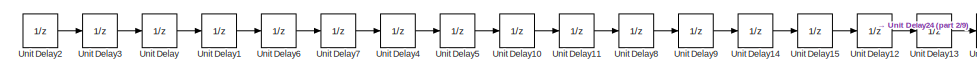
[diagram: Subsystem5/Subsystem - part 1/9, top left region]
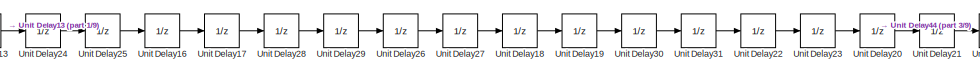
[diagram: Subsystem5/Subsystem - part 2/9, top left region]
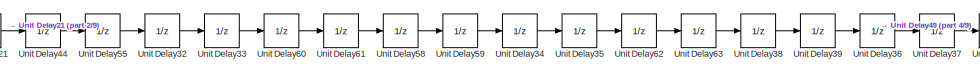
[diagram: Subsystem5/Subsystem - part 3/9, top left region]
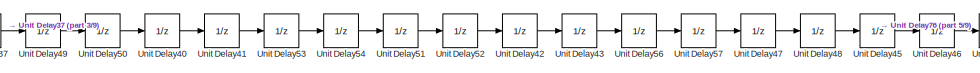
[diagram: Subsystem5/Subsystem - part 4/9, top center region]
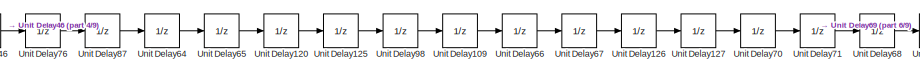
[diagram: Subsystem5/Subsystem - part 5/9, top center region]
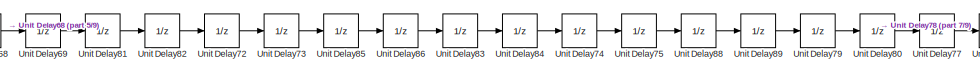
[diagram: Subsystem5/Subsystem - part 6/9, top right region]
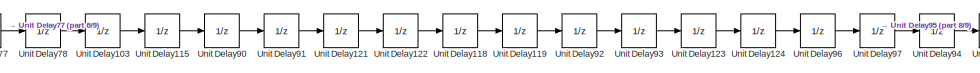
[diagram: Subsystem5/Subsystem - part 7/9, top right region]
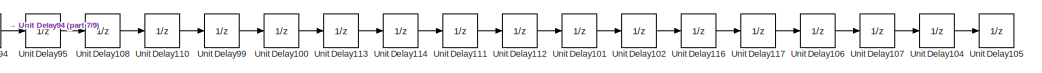
[diagram: Subsystem5/Subsystem - part 8/9, top right region]
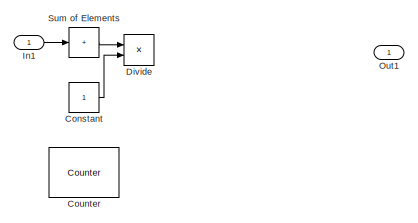
[diagram: Subsystem5/Subsystem - part 9/9, bottom left region]
BLOCK [SubSystem] Subsystem5/Subsystem
  Commented = on
BLOCK [Constant] Subsystem5/Subsystem/Constant
BLOCK [Reference] Subsystem5/Subsystem/Counter  REF=eeGeneralControl/Counter
  LibrarySourceBlock = ee_sl_lib/General Control/Counter
  SourceBlock = eeGeneralControl/Counter
  SourceType = Counter
BLOCK [Product] Subsystem5/Subsystem/Divide
  Inputs = */
BLOCK [Inport] Subsystem5/Subsystem/In1
BLOCK [Outport] Subsystem5/Subsystem/Out1
BLOCK [Sum] Subsystem5/Subsystem/Sum of Elements
  AccumDataTypeStr = int16
  IconShape = rectangular
  Inputs = +
  SaturateOnIntegerOverflow = on
BLOCK [UnitDelay] Subsystem5/Subsystem/Unit Delay
  Commented = on
  HasFrameUpgradeWarning = on
  SampleTime = -1
BLOCK [UnitDelay] Subsystem5/Subsystem/Unit Delay1
  Commented = on
  HasFrameUpgradeWarning = on
  SampleTime = -1
BLOCK [UnitDelay] Subsystem5/Subsystem/Unit Delay10
  Commented = on
  HasFrameUpgradeWarning = on
  SampleTime = -1
BLOCK [UnitDelay] Subsystem5/Subsystem/Unit Delay100
  Commented = on
  HasFrameUpgradeWarning = on
  SampleTime = -1
BLOCK [UnitDelay] Subsystem5/Subsystem/Unit Delay101
  Commented = on
  HasFrameUpgradeWarning = on
  SampleTime = -1
BLOCK [UnitDelay] Subsystem5/Subsystem/Unit Delay102
  Commented = on
  HasFrameUpgradeWarning = on
  SampleTime = -1
BLOCK [UnitDelay] Subsystem5/Subsystem/Unit Delay103
  Commented = on
  HasFrameUpgradeWarning = on
  SampleTime = -1
BLOCK [UnitDelay] Subsystem5/Subsystem/Unit Delay104
  Commented = on
  HasFrameUpgradeWarning = on
  SampleTime = -1
BLOCK [UnitDelay] Subsystem5/Subsystem/Unit Delay105
  Commented = on
  HasFrameUpgradeWarning = on
  SampleTime = -1
BLOCK [UnitDelay] Subsystem5/Subsystem/Unit Delay106
  Commented = on
  HasFrameUpgradeWarning = on
  SampleTime = -1
BLOCK [UnitDelay] Subsystem5/Subsystem/Unit Delay107
  Commented = on
  HasFrameUpgradeWarning = on
  SampleTime = -1
BLOCK [UnitDelay] Subsystem5/Subsystem/Unit Delay108
  Commented = on
  HasFrameUpgradeWarning = on
  SampleTime = -1
BLOCK [UnitDelay] Subsystem5/Subsystem/Unit Delay109
  Commented = on
  HasFrameUpgradeWarning = on
  SampleTime = -1
BLOCK [UnitDelay] Subsystem5/Subsystem/Unit Delay11
  Commented = on
  HasFrameUpgradeWarning = on
  SampleTime = -1
BLOCK [UnitDelay] Subsystem5/Subsystem/Unit Delay110
  Commented = on
  HasFrameUpgradeWarning = on
  SampleTime = -1
BLOCK [UnitDelay] Subsystem5/Subsystem/Unit Delay111
  Commented = on
  HasFrameUpgradeWarning = on
  SampleTime = -1
BLOCK [UnitDelay] Subsystem5/Subsystem/Unit Delay112
  Commented = on
  HasFrameUpgradeWarning = on
  SampleTime = -1
BLOCK [UnitDelay] Subsystem5/Subsystem/Unit Delay113
  Commented = on
  HasFrameUpgradeWarning = on
  SampleTime = -1
BLOCK [UnitDelay] Subsystem5/Subsystem/Unit Delay114
  Commented = on
  HasFrameUpgradeWarning = on
  SampleTime = -1
BLOCK [UnitDelay] Subsystem5/Subsystem/Unit Delay115
  Commented = on
  HasFrameUpgradeWarning = on
  SampleTime = -1
BLOCK [UnitDelay] Subsystem5/Subsystem/Unit Delay116
  Commented = on
  HasFrameUpgradeWarning = on
  SampleTime = -1
BLOCK [UnitDelay] Subsystem5/Subsystem/Unit Delay117
  Commented = on
  HasFrameUpgradeWarning = on
  SampleTime = -1
BLOCK [UnitDelay] Subsystem5/Subsystem/Unit Delay118
  Commented = on
  HasFrameUpgradeWarning = on
  SampleTime = -1
BLOCK [UnitDelay] Subsystem5/Subsystem/Unit Delay119
  Commented = on
  HasFrameUpgradeWarning = on
  SampleTime = -1
BLOCK [UnitDelay] Subsystem5/Subsystem/Unit Delay12
  Commented = on
  HasFrameUpgradeWarning = on
  SampleTime = -1
BLOCK [UnitDelay] Subsystem5/Subsystem/Unit Delay120
  Commented = on
  HasFrameUpgradeWarning = on
  SampleTime = -1
BLOCK [UnitDelay] Subsystem5/Subsystem/Unit Delay121
  Commented = on
  HasFrameUpgradeWarning = on
  SampleTime = -1
BLOCK [UnitDelay] Subsystem5/Subsystem/Unit Delay122
  Commented = on
  HasFrameUpgradeWarning = on
  SampleTime = -1
BLOCK [UnitDelay] Subsystem5/Subsystem/Unit Delay123
  Commented = on
  HasFrameUpgradeWarning = on
  SampleTime = -1
BLOCK [UnitDelay] Subsystem5/Subsystem/Unit Delay124
  Commented = on
  HasFrameUpgradeWarning = on
  SampleTime = -1
BLOCK [UnitDelay] Subsystem5/Subsystem/Unit Delay125
  Commented = on
  HasFrameUpgradeWarning = on
  SampleTime = -1
BLOCK [UnitDelay] Subsystem5/Subsystem/Unit Delay126
  Commented = on
  HasFrameUpgradeWarning = on
  SampleTime = -1
BLOCK [UnitDelay] Subsystem5/Subsystem/Unit Delay127
  Commented = on
  HasFrameUpgradeWarning = on
  SampleTime = -1
BLOCK [UnitDelay] Subsystem5/Subsystem/Unit Delay13
  Commented = on
  HasFrameUpgradeWarning = on
  SampleTime = -1
BLOCK [UnitDelay] Subsystem5/Subsystem/Unit Delay14
  Commented = on
  HasFrameUpgradeWarning = on
  SampleTime = -1
BLOCK [UnitDelay] Subsystem5/Subsystem/Unit Delay15
  Commented = on
  HasFrameUpgradeWarning = on
  SampleTime = -1
BLOCK [UnitDelay] Subsystem5/Subsystem/Unit Delay16
  Commented = on
  HasFrameUpgradeWarning = on
  SampleTime = -1
BLOCK [UnitDelay] Subsystem5/Subsystem/Unit Delay17
  Commented = on
  HasFrameUpgradeWarning = on
  SampleTime = -1
BLOCK [UnitDelay] Subsystem5/Subsystem/Unit Delay18
  Commented = on
  HasFrameUpgradeWarning = on
  SampleTime = -1
BLOCK [UnitDelay] Subsystem5/Subsystem/Unit Delay19
  Commented = on
  HasFrameUpgradeWarning = on
  SampleTime = -1
BLOCK [UnitDelay] Subsystem5/Subsystem/Unit Delay2
  Commented = on
  HasFrameUpgradeWarning = on
  SampleTime = -1
BLOCK [UnitDelay] Subsystem5/Subsystem/Unit Delay20
  Commented = on
  HasFrameUpgradeWarning = on
  SampleTime = -1
BLOCK [UnitDelay] Subsystem5/Subsystem/Unit Delay21
  Commented = on
  HasFrameUpgradeWarning = on
  SampleTime = -1
BLOCK [UnitDelay] Subsystem5/Subsystem/Unit Delay22
  Commented = on
  HasFrameUpgradeWarning = on
  SampleTime = -1
BLOCK [UnitDelay] Subsystem5/Subsystem/Unit Delay23
  Commented = on
  HasFrameUpgradeWarning = on
  SampleTime = -1
BLOCK [UnitDelay] Subsystem5/Subsystem/Unit Delay24
  Commented = on
  HasFrameUpgradeWarning = on
  SampleTime = -1
BLOCK [UnitDelay] Subsystem5/Subsystem/Unit Delay25
  Commented = on
  HasFrameUpgradeWarning = on
  SampleTime = -1
BLOCK [UnitDelay] Subsystem5/Subsystem/Unit Delay26
  Commented = on
  HasFrameUpgradeWarning = on
  SampleTime = -1
BLOCK [UnitDelay] Subsystem5/Subsystem/Unit Delay27
  Commented = on
  HasFrameUpgradeWarning = on
  SampleTime = -1
BLOCK [UnitDelay] Subsystem5/Subsystem/Unit Delay28
  Commented = on
  HasFrameUpgradeWarning = on
  SampleTime = -1
BLOCK [UnitDelay] Subsystem5/Subsystem/Unit Delay29
  Commented = on
  HasFrameUpgradeWarning = on
  SampleTime = -1
BLOCK [UnitDelay] Subsystem5/Subsystem/Unit Delay3
  Commented = on
  HasFrameUpgradeWarning = on
  SampleTime = -1
BLOCK [UnitDelay] Subsystem5/Subsystem/Unit Delay30
  Commented = on
  HasFrameUpgradeWarning = on
  SampleTime = -1
BLOCK [UnitDelay] Subsystem5/Subsystem/Unit Delay31
  Commented = on
  HasFrameUpgradeWarning = on
  SampleTime = -1
BLOCK [UnitDelay] Subsystem5/Subsystem/Unit Delay32
  Commented = on
  HasFrameUpgradeWarning = on
  SampleTime = -1
BLOCK [UnitDelay] Subsystem5/Subsystem/Unit Delay33
  Commented = on
  HasFrameUpgradeWarning = on
  SampleTime = -1
BLOCK [UnitDelay] Subsystem5/Subsystem/Unit Delay34
  Commented = on
  HasFrameUpgradeWarning = on
  SampleTime = -1
BLOCK [UnitDelay] Subsystem5/Subsystem/Unit Delay35
  Commented = on
  HasFrameUpgradeWarning = on
  SampleTime = -1
BLOCK [UnitDelay] Subsystem5/Subsystem/Unit Delay36
  Commented = on
  HasFrameUpgradeWarning = on
  SampleTime = -1
BLOCK [UnitDelay] Subsystem5/Subsystem/Unit Delay37
  Commented = on
  HasFrameUpgradeWarning = on
  SampleTime = -1
BLOCK [UnitDelay] Subsystem5/Subsystem/Unit Delay38
  Commented = on
  HasFrameUpgradeWarning = on
  SampleTime = -1
BLOCK [UnitDelay] Subsystem5/Subsystem/Unit Delay39
  Commented = on
  HasFrameUpgradeWarning = on
  SampleTime = -1
BLOCK [UnitDelay] Subsystem5/Subsystem/Unit Delay4
  Commented = on
  HasFrameUpgradeWarning = on
  SampleTime = -1
BLOCK [UnitDelay] Subsystem5/Subsystem/Unit Delay40
  Commented = on
  HasFrameUpgradeWarning = on
  SampleTime = -1
BLOCK [UnitDelay] Subsystem5/Subsystem/Unit Delay41
  Commented = on
  HasFrameUpgradeWarning = on
  SampleTime = -1
BLOCK [UnitDelay] Subsystem5/Subsystem/Unit Delay42
  Commented = on
  HasFrameUpgradeWarning = on
  SampleTime = -1
BLOCK [UnitDelay] Subsystem5/Subsystem/Unit Delay43
  Commented = on
  HasFrameUpgradeWarning = on
  SampleTime = -1
BLOCK [UnitDelay] Subsystem5/Subsystem/Unit Delay44
  Commented = on
  HasFrameUpgradeWarning = on
  SampleTime = -1
BLOCK [UnitDelay] Subsystem5/Subsystem/Unit Delay45
  Commented = on
  HasFrameUpgradeWarning = on
  SampleTime = -1
BLOCK [UnitDelay] Subsystem5/Subsystem/Unit Delay46
  Commented = on
  HasFrameUpgradeWarning = on
  SampleTime = -1
BLOCK [UnitDelay] Subsystem5/Subsystem/Unit Delay47
  Commented = on
  HasFrameUpgradeWarning = on
  SampleTime = -1
BLOCK [UnitDelay] Subsystem5/Subsystem/Unit Delay48
  Commented = on
  HasFrameUpgradeWarning = on
  SampleTime = -1
BLOCK [UnitDelay] Subsystem5/Subsystem/Unit Delay49
  Commented = on
  HasFrameUpgradeWarning = on
  SampleTime = -1
BLOCK [UnitDelay] Subsystem5/Subsystem/Unit Delay5
  Commented = on
  HasFrameUpgradeWarning = on
  SampleTime = -1
BLOCK [UnitDelay] Subsystem5/Subsystem/Unit Delay50
  Commented = on
  HasFrameUpgradeWarning = on
  SampleTime = -1
BLOCK [UnitDelay] Subsystem5/Subsystem/Unit Delay51
  Commented = on
  HasFrameUpgradeWarning = on
  SampleTime = -1
BLOCK [UnitDelay] Subsystem5/Subsystem/Unit Delay52
  Commented = on
  HasFrameUpgradeWarning = on
  SampleTime = -1
BLOCK [UnitDelay] Subsystem5/Subsystem/Unit Delay53
  Commented = on
  HasFrameUpgradeWarning = on
  SampleTime = -1
BLOCK [UnitDelay] Subsystem5/Subsystem/Unit Delay54
  Commented = on
  HasFrameUpgradeWarning = on
  SampleTime = -1
BLOCK [UnitDelay] Subsystem5/Subsystem/Unit Delay55
  Commented = on
  HasFrameUpgradeWarning = on
  SampleTime = -1
BLOCK [UnitDelay] Subsystem5/Subsystem/Unit Delay56
  Commented = on
  HasFrameUpgradeWarning = on
  SampleTime = -1
BLOCK [UnitDelay] Subsystem5/Subsystem/Unit Delay57
  Commented = on
  HasFrameUpgradeWarning = on
  SampleTime = -1
BLOCK [UnitDelay] Subsystem5/Subsystem/Unit Delay58
  Commented = on
  HasFrameUpgradeWarning = on
  SampleTime = -1
BLOCK [UnitDelay] Subsystem5/Subsystem/Unit Delay59
  Commented = on
  HasFrameUpgradeWarning = on
  SampleTime = -1
BLOCK [UnitDelay] Subsystem5/Subsystem/Unit Delay6
  Commented = on
  HasFrameUpgradeWarning = on
  SampleTime = -1
BLOCK [UnitDelay] Subsystem5/Subsystem/Unit Delay60
  Commented = on
  HasFrameUpgradeWarning = on
  SampleTime = -1
BLOCK [UnitDelay] Subsystem5/Subsystem/Unit Delay61
  Commented = on
  HasFrameUpgradeWarning = on
  SampleTime = -1
BLOCK [UnitDelay] Subsystem5/Subsystem/Unit Delay62
  Commented = on
  HasFrameUpgradeWarning = on
  SampleTime = -1
BLOCK [UnitDelay] Subsystem5/Subsystem/Unit Delay63
  Commented = on
  HasFrameUpgradeWarning = on
  SampleTime = -1
BLOCK [UnitDelay] Subsystem5/Subsystem/Unit Delay64
  Commented = on
  HasFrameUpgradeWarning = on
  SampleTime = -1
BLOCK [UnitDelay] Subsystem5/Subsystem/Unit Delay65
  Commented = on
  HasFrameUpgradeWarning = on
  SampleTime = -1
BLOCK [UnitDelay] Subsystem5/Subsystem/Unit Delay66
  Commented = on
  HasFrameUpgradeWarning = on
  SampleTime = -1
BLOCK [UnitDelay] Subsystem5/Subsystem/Unit Delay67
  Commented = on
  HasFrameUpgradeWarning = on
  SampleTime = -1
BLOCK [UnitDelay] Subsystem5/Subsystem/Unit Delay68
  Commented = on
  HasFrameUpgradeWarning = on
  SampleTime = -1
BLOCK [UnitDelay] Subsystem5/Subsystem/Unit Delay69
  Commented = on
  HasFrameUpgradeWarning = on
  SampleTime = -1
BLOCK [UnitDelay] Subsystem5/Subsystem/Unit Delay7
  Commented = on
  HasFrameUpgradeWarning = on
  SampleTime = -1
BLOCK [UnitDelay] Subsystem5/Subsystem/Unit Delay70
  Commented = on
  HasFrameUpgradeWarning = on
  SampleTime = -1
BLOCK [UnitDelay] Subsystem5/Subsystem/Unit Delay71
  Commented = on
  HasFrameUpgradeWarning = on
  SampleTime = -1
BLOCK [UnitDelay] Subsystem5/Subsystem/Unit Delay72
  Commented = on
  HasFrameUpgradeWarning = on
  SampleTime = -1
BLOCK [UnitDelay] Subsystem5/Subsystem/Unit Delay73
  Commented = on
  HasFrameUpgradeWarning = on
  SampleTime = -1
BLOCK [UnitDelay] Subsystem5/Subsystem/Unit Delay74
  Commented = on
  HasFrameUpgradeWarning = on
  SampleTime = -1
BLOCK [UnitDelay] Subsystem5/Subsystem/Unit Delay75
  Commented = on
  HasFrameUpgradeWarning = on
  SampleTime = -1
BLOCK [UnitDelay] Subsystem5/Subsystem/Unit Delay76
  Commented = on
  HasFrameUpgradeWarning = on
  SampleTime = -1
BLOCK [UnitDelay] Subsystem5/Subsystem/Unit Delay77
  Commented = on
  HasFrameUpgradeWarning = on
  SampleTime = -1
BLOCK [UnitDelay] Subsystem5/Subsystem/Unit Delay78
  Commented = on
  HasFrameUpgradeWarning = on
  SampleTime = -1
BLOCK [UnitDelay] Subsystem5/Subsystem/Unit Delay79
  Commented = on
  HasFrameUpgradeWarning = on
  SampleTime = -1
BLOCK [UnitDelay] Subsystem5/Subsystem/Unit Delay8
  Commented = on
  HasFrameUpgradeWarning = on
  SampleTime = -1
BLOCK [UnitDelay] Subsystem5/Subsystem/Unit Delay80
  Commented = on
  HasFrameUpgradeWarning = on
  SampleTime = -1
BLOCK [UnitDelay] Subsystem5/Subsystem/Unit Delay81
  Commented = on
  HasFrameUpgradeWarning = on
  SampleTime = -1
BLOCK [UnitDelay] Subsystem5/Subsystem/Unit Delay82
  Commented = on
  HasFrameUpgradeWarning = on
  SampleTime = -1
BLOCK [UnitDelay] Subsystem5/Subsystem/Unit Delay83
  Commented = on
  HasFrameUpgradeWarning = on
  SampleTime = -1
BLOCK [UnitDelay] Subsystem5/Subsystem/Unit Delay84
  Commented = on
  HasFrameUpgradeWarning = on
  SampleTime = -1
BLOCK [UnitDelay] Subsystem5/Subsystem/Unit Delay85
  Commented = on
  HasFrameUpgradeWarning = on
  SampleTime = -1
BLOCK [UnitDelay] Subsystem5/Subsystem/Unit Delay86
  Commented = on
  HasFrameUpgradeWarning = on
  SampleTime = -1
BLOCK [UnitDelay] Subsystem5/Subsystem/Unit Delay87
  Commented = on
  HasFrameUpgradeWarning = on
  SampleTime = -1
BLOCK [UnitDelay] Subsystem5/Subsystem/Unit Delay88
  Commented = on
  HasFrameUpgradeWarning = on
  SampleTime = -1
BLOCK [UnitDelay] Subsystem5/Subsystem/Unit Delay89
  Commented = on
  HasFrameUpgradeWarning = on
  SampleTime = -1
BLOCK [UnitDelay] Subsystem5/Subsystem/Unit Delay9
  Commented = on
  HasFrameUpgradeWarning = on
  SampleTime = -1
BLOCK [UnitDelay] Subsystem5/Subsystem/Unit Delay90
  Commented = on
  HasFrameUpgradeWarning = on
  SampleTime = -1
BLOCK [UnitDelay] Subsystem5/Subsystem/Unit Delay91
  Commented = on
  HasFrameUpgradeWarning = on
  SampleTime = -1
BLOCK [UnitDelay] Subsystem5/Subsystem/Unit Delay92
  Commented = on
  HasFrameUpgradeWarning = on
  SampleTime = -1
BLOCK [UnitDelay] Subsystem5/Subsystem/Unit Delay93
  Commented = on
  HasFrameUpgradeWarning = on
  SampleTime = -1
BLOCK [UnitDelay] Subsystem5/Subsystem/Unit Delay94
  Commented = on
  HasFrameUpgradeWarning = on
  SampleTime = -1
BLOCK [UnitDelay] Subsystem5/Subsystem/Unit Delay95
  Commented = on
  HasFrameUpgradeWarning = on
  SampleTime = -1
BLOCK [UnitDelay] Subsystem5/Subsystem/Unit Delay96
  Commented = on
  HasFrameUpgradeWarning = on
  SampleTime = -1
BLOCK [UnitDelay] Subsystem5/Subsystem/Unit Delay97
  Commented = on
  HasFrameUpgradeWarning = on
  SampleTime = -1
BLOCK [UnitDelay] Subsystem5/Subsystem/Unit Delay98
  Commented = on
  HasFrameUpgradeWarning = on
  SampleTime = -1
BLOCK [UnitDelay] Subsystem5/Subsystem/Unit Delay99
  Commented = on
  HasFrameUpgradeWarning = on
  SampleTime = -1
BLOCK [Inport] Subsystem5/Voltage_1
BLOCK [Outport] Subsystem5/p1
  Port = 9
BLOCK [Outport] Subsystem5/p2
  Port = 6
BLOCK [Record] XY Graph
  CompatibilityTag = XY
  FileSettingsInternal = {"entries":[{"content":{"excelSettings":{"content":{},"type":"Streamout.ExcelSettings"}},"type":"Streamout.FileSettingStorage","uuid":"f45d7055-9ecb-48ab-a96f-031432f1a6f8"}],"packageUris":["http://schema.mathworks.com/mf0/streamout_blocks/R2020a"],"version":"1.0"}
  Layout = [1 1]
  SignalsInternal = {"entries":[{"content":{"signals":[{"content":{"blockPath":["dynamic_model_tab/XY Graph"],"channel":[],"dimensions":[1],"domain":"dynamic_model_tab/XY Graph","lineColor":"#7e2f8e","plots":[],"port":1,"sid":[],"signalID":33,"signalName":"From26"},"type":"RecordBlkView.Signal","uuid":"0354a216-3750-4216-9fc3-88f8f814a368"},{"content":{"blockPath":["dynamic_model_tab/XY Graph"],"channel":[],"dimensio...<+396ch>
  VisualizationBindings = {"xyplotplugin":{"info":[{"series":[],"subplotID":1}]}}
BLOCK [SubSystem] legacy modules
  Commented = on
BLOCK [Constant] legacy modules/Constant1
  Commented = on
  Value = 0.5e3
BLOCK [DiscreteFir] legacy modules/Discrete FIR Filter
  Commented = on
  InputPortMap = u0
  OutputPortMap = o0
BLOCK [DiscreteFilter] legacy modules/Discrete Filter
  Commented = on
  InputPortMap = u0
BLOCK [Reference] legacy modules/Discrete Variable Time Delay  REF=spsDiscreteVariableTimeDelayLib/Discrete Variable
Time Delay
  Commented = on
  LibrarySourceBlock = sps_lib/Control/Discrete Variable\nTime Delay
  SourceBlock = spsDiscreteVariableTimeDelayLib/Discrete Variable\nTime Delay
  SourceType = Discrete Variable Time Delay
BLOCK [Reference] legacy modules/Discrete Variable Time Delay1  REF=spsDiscreteVariableTimeDelayLib/Discrete Variable
Time Delay
  Commented = on
  LibrarySourceBlock = sps_lib/Control/Discrete Variable\nTime Delay
  SourceBlock = spsDiscreteVariableTimeDelayLib/Discrete Variable\nTime Delay
  SourceType = Discrete Variable Time Delay
BLOCK [From] legacy modules/From24
  Commented = on
  GotoTag = ref
BLOCK [From] legacy modules/From25
  Commented = on
  GotoTag = ref
BLOCK [Inport] legacy modules/In1
BLOCK [Reference] legacy modules/Mean (Variable Frequency)  REF=spsMeanVariableFrequencyLib/Mean
(Variable Frequency)
  Commented = on
  LibrarySourceBlock = sps_lib/Sensors and Measurements/Mean\n(Variable Frequency)
  SourceBlock = spsMeanVariableFrequencyLib/Mean\n(Variable Frequency)
  SourceType = Mean (Variable Frequency)
BLOCK [Outport] legacy modules/Out1
BLOCK [Outport] legacy modules/Out2
  Port = 2
BLOCK [Outport] legacy modules/Out3
  Port = 3
BLOCK [Reference] legacy modules/Series RLC Branch3  REF=spsSeriesRLCBranchLib/Series RLC Branch
  Commented = on
  LibrarySourceBlock = sps_lib/Passives/Series RLC Branch
  NameLocation = left
  SourceBlock = spsSeriesRLCBranchLib/Series RLC Branch
  SourceType = Series RLC Branch
BLOCK [Reference] legacy modules/Series RLC Branch4  REF=spsSeriesRLCBranchLib/Series RLC Branch
  Commented = on
  LibrarySourceBlock = sps_lib/Passives/Series RLC Branch
  NameLocation = left
  SourceBlock = spsSeriesRLCBranchLib/Series RLC Branch
  SourceType = Series RLC Branch
BLOCK [Reference] legacy modules/Series RLC Branch5  REF=spsSeriesRLCBranchLib/Series RLC Branch
  Commented = on
  LibrarySourceBlock = sps_lib/Passives/Series RLC Branch
  NameLocation = top
  SourceBlock = spsSeriesRLCBranchLib/Series RLC Branch
  SourceType = Series RLC Branch
BLOCK [SubSystem] legacy modules/Subsystem3
  Commented = on
BLOCK [Reference] legacy modules/Subsystem3/Edge Detector  REF=spsEdgeDetectorLib/Edge Detector
  LibrarySourceBlock = sps_lib/Control/Edge Detector
  SourceBlock = spsEdgeDetectorLib/Edge Detector
  SourceType = Edge Detector
BLOCK [Inport] legacy modules/Subsystem3/In1
BLOCK [Inport] legacy modules/Subsystem3/In2
  Port = 2
BLOCK [Outport] legacy modules/Subsystem3/Out1
BLOCK [Outport] legacy modules/Subsystem3/Out2
  Port = 2
BLOCK [SubSystem] legacy modules/Subsystem3/Subsystem1
BLOCK [Clock] legacy modules/Subsystem3/Subsystem1/Clock
  NameLocation = left
BLOCK [Product] legacy modules/Subsystem3/Subsystem1/Divide
  Inputs = */
  NameLocation = top
BLOCK [Inport] legacy modules/Subsystem3/Subsystem1/In1
BLOCK [Inport] legacy modules/Subsystem3/Subsystem1/Input
  Port = 2
BLOCK [Integrator] legacy modules/Subsystem3/Subsystem1/Integrator
  ExternalReset = rising
  IgnoreLimit = on
  LimitOutput = on
BLOCK [Outport] legacy modules/Subsystem3/Subsystem1/Out1
BLOCK [Switch] legacy modules/Subsystem3/Subsystem1/Switch
  Criteria = u2 > Threshold
  InputSameDT = off
  SaturateOnIntegerOverflow = off
BLOCK [SubSystem] legacy modules/Subsystem4
  Commented = on
BLOCK [Reference] legacy modules/Subsystem4/Edge Detector  REF=spsEdgeDetectorLib/Edge Detector
  LibrarySourceBlock = sps_lib/Control/Edge Detector
  SourceBlock = spsEdgeDetectorLib/Edge Detector
  SourceType = Edge Detector
BLOCK [Inport] legacy modules/Subsystem4/In1
BLOCK [Inport] legacy modules/Subsystem4/In2
  Port = 2
BLOCK [Outport] legacy modules/Subsystem4/Out1
BLOCK [Outport] legacy modules/Subsystem4/Out2
  Port = 2
BLOCK [SubSystem] legacy modules/Subsystem4/Subsystem1
BLOCK [Clock] legacy modules/Subsystem4/Subsystem1/Clock
  NameLocation = left
BLOCK [Product] legacy modules/Subsystem4/Subsystem1/Divide
  Inputs = */
  NameLocation = top
BLOCK [Inport] legacy modules/Subsystem4/Subsystem1/In1
BLOCK [Inport] legacy modules/Subsystem4/Subsystem1/Input
  Port = 2
BLOCK [Integrator] legacy modules/Subsystem4/Subsystem1/Integrator
  ExternalReset = rising
  IgnoreLimit = on
  LimitOutput = on
BLOCK [Outport] legacy modules/Subsystem4/Subsystem1/Out1
BLOCK [Switch] legacy modules/Subsystem4/Subsystem1/Switch
  Criteria = u2 > Threshold
  InputSameDT = off
  SaturateOnIntegerOverflow = off
BLOCK [SubSystem] legacy modules/sigmoid
  Commented = on
  ErrorFcn = Stateflow.Translate.translate
  LibrarySourceBlock = simulink/User-Defined\nFunctions/MATLAB Function
  PermitHierarchicalResolution = ExplicitOnly
  SFBlockType = MATLAB Function
  TreatAsAtomicUnit = on
BLOCK [Demux] legacy modules/sigmoid/ Demux 
  Outputs = 1
BLOCK [S-Function] legacy modules/sigmoid/ SFunction 
  EnableBusSupport = on
  FunctionName = sf_sfun
  PortCounts = [1 2]
  SFcnIsStateOwnerBlock = off
  SFunctionDeploymentMode = off
  Tag = Stateflow S-Function 2
BLOCK [Terminator] legacy modules/sigmoid/ Terminator 
BLOCK [Inport] legacy modules/sigmoid/u
BLOCK [Outport] legacy modules/sigmoid/y
BLOCK [Reference] powergui  REF=spspowerguiLib/powergui
  Priority = 1
  SourceBlock = spspowerguiLib/powergui
  SourceType = PSB option menu block
ANNOTATION (root): SPS switching scheme
LINE Battery:1 -> Bus Selector1:1
LINE Bus Selector1:1 -> Goto16:1
NET Bus Selector:1 -> Product3:1, Scope7:1
NET Bus Selector:2 -> Product3:2, Scope7:2
LINE Constant1:1 -> MATLAB Function1:2
LINE Constant2:1 -> MATLAB Function1:3
LINE Constant:1 -> MATLAB Function1:1
LINE Demux1:1 -> Scope11:1
LINE Demux1:2 -> Scope11:2
LINE Demux1:3 -> Scope11:3
LINE Demux2:1 -> Scope12:1
LINE Demux2:2 -> Scope12:2
LINE Demux:1 -> Goto24:1
LINE Demux:2 -> Goto25:1
LINE From10:1 -> Goto6:1
LINE From11:1 -> Goto7:1
LINE From12:1 -> Goto9:1
LINE From13:1 -> NOT1:1
LINE From14:1 -> Scope:1
LINE From15:1 -> Scope:2
LINE From16:1 -> Subsystem1:13
LINE From17:1 -> Subsystem1:14
NET From18:1 -> Scope1:2, Subsystem5:2
NET From19:1 -> Scope2:2, Subsystem5:4
LINE From1:1 -> Subsystem1:4
LINE From20:1 -> Subsystem:2
LINE From21:1 -> Scope1:5
LINE From22:1 -> Scope2:5
NET From23:1 -> Scope2:1, Subsystem5:3
LINE From24:1 -> MATLAB Function:1
LINE From25:1 -> MATLAB Function:2
LINE From26:1 -> XY Graph:1
LINE From27:1 -> Subsystem1:9
LINE From28:1 -> Subsystem1:10
LINE From29:1 -> Subsystem1:11
LINE From2:1 -> Subsystem1:2
LINE From30:1 -> Subsystem1:12
LINE From31:1 -> Goto21:1
LINE From32:1 -> NOT2:1
LINE From33:1 -> Goto20:1
NET From34:1 -> Scope9:2, Subsystem5:6
NET From35:1 -> Scope9:1, Subsystem5:5
LINE From36:1 -> Scope9:5
LINE From37:1 -> Display:1
LINE From38:1 -> Display1:1
LINE From39:1 -> Display2:1
LINE From3:1 -> Subsystem1:5
NET From40:1 -> Scope1:1, Subsystem5:1
LINE From41:1 -> MATLAB Function:3
LINE From42:1 -> Subsystem:4
LINE From43:1 -> Subsystem:6
LINE From4:1 -> Subsystem1:8
LINE From5:1 -> Subsystem1:3
LINE From6:1 -> Subsystem1:6
LINE From7:1 -> Subsystem1:7
LINE From8:1 -> NOT:1
LINE From9:1 -> Goto8:1
LINE From:1 -> Subsystem1:1
LINE HDL Counter:1 -> Integer to Bit Converter:1
LINE Integer to Bit Converter:1 -> Demux1:1
NET MATLAB Function1:1 -> Goto15:1, Subsystem:1
NET MATLAB Function1:2 -> Goto26:1, Subsystem:3
NET MATLAB Function1:3 -> Goto27:1, Subsystem:5
NET MATLAB Function:1 -> Scope3:1, XY Graph:2
LINE Mean3:1 -> Scope7:4
LINE Multimeter1:1 -> Demux:1
LINE Multimeter2:1 -> Demux2:1
LINE Multimeter:1 -> Goto17:1
LINE NOT1:1 -> Goto5:1
LINE NOT2:1 -> Goto19:1
LINE NOT:1 -> Goto:1
NET Product3:1 -> Scope7:3, Second-Order Low-Pass Filter (Discrete or Continuous)2:1
LINE Second-Order Low-Pass Filter (Discrete or Continuous)2:1 -> Mean3:1
LINE Subsystem/Backlash1:1 -> Subsystem/Discrete Varying PID1:1
LINE Subsystem/Backlash2:1 -> Subsystem/Discrete Varying PID2:1
LINE Subsystem/Backlash:1 -> Subsystem/Discrete Varying PID:1
NET Subsystem/Constant10:1 -> Subsystem/Discrete Varying PID2:5, Subsystem/Gain8:1
LINE Subsystem/Constant11:1 -> Subsystem/Divide2:2
LINE Subsystem/Constant13:1 -> Subsystem/Discrete Varying PID2:3
LINE Subsystem/Constant14:1 -> Subsystem/Discrete Varying PID2:4
NET Subsystem/Constant1:1 -> Subsystem/Discrete Varying PID1:5, Subsystem/Gain6:1
LINE Subsystem/Constant2:1 -> Subsystem/Divide:2
NET Subsystem/Constant3:1 -> Subsystem/Discrete Varying PID1:2, Subsystem/Discrete Varying PID2:2, Subsystem/Discrete Varying PID:2
LINE Subsystem/Constant4:1 -> Subsystem/Discrete Varying PID:3
LINE Subsystem/Constant5:1 -> Subsystem/Discrete Varying PID:4
LINE Subsystem/Constant6:1 -> Subsystem/Divide1:2
LINE Subsystem/Constant8:1 -> Subsystem/Discrete Varying PID1:3
LINE Subsystem/Constant9:1 -> Subsystem/Discrete Varying PID1:4
NET Subsystem/Constant:1 -> Subsystem/Discrete Varying PID:5, Subsystem/Gain1:1
LINE Subsystem/Discrete Varying PID1:1 -> Subsystem/Divide1:1
LINE Subsystem/Discrete Varying PID2:1 -> Subsystem/Divide2:1
LINE Subsystem/Discrete Varying PID:1 -> Subsystem/Divide:1
NET Subsystem/Divide1:1 -> Subsystem/Out10:1, Subsystem/Saturation1:1
NET Subsystem/Divide2:1 -> Subsystem/Out14:1, Subsystem/Saturation2:1
NET Subsystem/Divide:1 -> Subsystem/Out7:1, Subsystem/Saturation:1
LINE Subsystem/From1:1 -> Subsystem/Subsystem:5
LINE Subsystem/From2:1 -> Subsystem/Subsystem:6
LINE Subsystem/From:1 -> Subsystem/Subsystem:4
LINE Subsystem/Gain1:1 -> Subsystem/Discrete Varying PID:6
LINE Subsystem/Gain5:1 -> Subsystem/Subsystem:2
LINE Subsystem/Gain6:1 -> Subsystem/Discrete Varying PID1:6
LINE Subsystem/Gain7:1 -> Subsystem/Subsystem:3
LINE Subsystem/Gain8:1 -> Subsystem/Discrete Varying PID2:6
LINE Subsystem/Gain:1 -> Subsystem/Subsystem:1
LINE Subsystem/HDL Counter:1 -> Subsystem/Integer to Bit Converter:1
LINE Subsystem/In2:1 -> Subsystem/Subtract:2
LINE Subsystem/In4:1 -> Subsystem/Subtract1:2
LINE Subsystem/In6:1 -> Subsystem/Subtract2:2
LINE Subsystem/Integer to Bit Converter:1 -> Subsystem/Demux1:1
LINE Subsystem/Pulse Generator1:1 -> Subsystem/Variable Time Delay3:1
LINE Subsystem/Pulse Generator2:1 -> Subsystem/Variable Time Delay5:1
LINE Subsystem/Pulse Generator3:1 -> Subsystem/Variable Time Delay:1
NET Subsystem/Saturation1:1 -> Subsystem/Gain5:1, Subsystem/Out9:1
NET Subsystem/Saturation2:1 -> Subsystem/Gain7:1, Subsystem/Out13:1
NET Subsystem/Saturation:1 -> Subsystem/Gain:1, Subsystem/Out6:1
LINE Subsystem/Subsystem/MATLAB Function:1 -> Subsystem/Subsystem/d1:1
LINE Subsystem/Subsystem/MATLAB Function:2 -> Subsystem/Subsystem/d2:1
LINE Subsystem/Subsystem/MATLAB Function:3 -> Subsystem/Subsystem/d3:1
LINE Subsystem/Subsystem/P1ref:1 -> Subsystem/Subsystem/MATLAB Function:4
LINE Subsystem/Subsystem/P2ref:1 -> Subsystem/Subsystem/MATLAB Function:5
LINE Subsystem/Subsystem/P3ref:1 -> Subsystem/Subsystem/MATLAB Function:6
LINE Subsystem/Subsystem/ang1:1 -> Subsystem/Subsystem/MATLAB Function:1
LINE Subsystem/Subsystem/ang2:1 -> Subsystem/Subsystem/MATLAB Function:2
LINE Subsystem/Subsystem/ang3:1 -> Subsystem/Subsystem/MATLAB Function:3
NET Subsystem/Subsystem:1 -> Subsystem/Variable Time Delay:2, Subsystem/d1:1
NET Subsystem/Subsystem:2 -> Subsystem/Variable Time Delay3:2, Subsystem/d2:1
NET Subsystem/Subsystem:3 -> Subsystem/Variable Time Delay5:2, Subsystem/d3:1
NET Subsystem/Subtract1:1 -> Subsystem/Backlash1:1, Subsystem/Out11:1
NET Subsystem/Subtract2:1 -> Subsystem/Backlash2:1, Subsystem/Out15:1
NET Subsystem/Subtract:1 -> Subsystem/Backlash:1, Subsystem/Out8:1
LINE Subsystem/Variable Time Delay3:1 -> Subsystem/Out16:1
LINE Subsystem/Variable Time Delay5:1 -> Subsystem/Out18:1
LINE Subsystem/Variable Time Delay:1 -> Subsystem/Out1:1
NET Subsystem/pref1:1 -> Subsystem/Goto:1, Subsystem/Subtract:1
NET Subsystem/pref2:1 -> Subsystem/Goto1:1, Subsystem/Subtract1:1
NET Subsystem/pref3:1 -> Subsystem/Goto2:1, Subsystem/Subtract2:1
LINE Subsystem1/Current Measurement1:1 -> Subsystem1/i1:1
LINE Subsystem1/Current Measurement2:1 -> Subsystem1/i3:1
LINE Subsystem1/Current Measurement:1 -> Subsystem1/i2:1
LINE Subsystem1/In3:1 -> Subsystem1/Product:1
LINE Subsystem1/In4:1 -> Subsystem1/Product:2
LINE Subsystem1/Mean:1 -> Subsystem1/Out6:1
LINE Subsystem1/Mosfet:1 -> Subsystem1/m:1
NET Subsystem1/Product:1 -> Subsystem1/Out4:1, Subsystem1/Second-Order Low-Pass Filter (Discrete or Continuous)2:1
LINE Subsystem1/Second-Order Low-Pass Filter (Discrete or Continuous)2:1 -> Subsystem1/Mean:1
LINE Subsystem1/V:1 -> Subsystem1/v:1
LINE Subsystem1/g10:1 -> Subsystem1/Mosfet9:1
LINE Subsystem1/g11:1 -> Subsystem1/Mosfet10:1
LINE Subsystem1/g12:1 -> Subsystem1/Mosfet11:1
LINE Subsystem1/g1:1 -> Subsystem1/Mosfet:1
LINE Subsystem1/g2:1 -> Subsystem1/Mosfet1:1
LINE Subsystem1/g3:1 -> Subsystem1/Mosfet2:1
LINE Subsystem1/g4:1 -> Subsystem1/Mosfet3:1
LINE Subsystem1/g5:1 -> Subsystem1/Mosfet4:1
LINE Subsystem1/g6:1 -> Subsystem1/Mosfet5:1
LINE Subsystem1/g7:1 -> Subsystem1/Mosfet6:1
LINE Subsystem1/g8:1 -> Subsystem1/Mosfet7:1
LINE Subsystem1/g9:1 -> Subsystem1/Mosfet8:1
LINE Subsystem1/iLk:1 -> Subsystem1/i:1
LINE Subsystem1:1 -> Goto2:1
LINE Subsystem1:2 -> Goto1:1
LINE Subsystem1:3 -> Goto4:1
LINE Subsystem1:4 -> Scope:3
LINE Subsystem1:5 -> Bus Selector:1
NET Subsystem1:6 -> Goto12:1, Scope:4
LINE Subsystem1:7 -> Goto3:1
LINE Subsystem1:8 -> Goto18:1
LINE Subsystem5/<Voltage (V)>1:1 -> Subsystem5/Product3:1
LINE Subsystem5/<Voltage (V)>:1 -> Subsystem5/Product2:1
LINE Subsystem5/Current_1:1 -> Subsystem5/Product1:2
LINE Subsystem5/In1:1 -> Subsystem5/Product3:2
LINE Subsystem5/In5:1 -> Subsystem5/Product2:2
LINE Subsystem5/Mean1:1 -> Subsystem5/Mean:1
LINE Subsystem5/Mean2:1 -> Subsystem5/Out5:1
LINE Subsystem5/Mean3:1 -> Subsystem5/P1_LPF:1
LINE Subsystem5/Mean4:1 -> Subsystem5/p2:1
LINE Subsystem5/Mean5:1 -> Subsystem5/Out2:1
LINE Subsystem5/Mean6:1 -> Subsystem5/p1:1
NET Subsystem5/Product1:1 -> Subsystem5/Mean1:1, Subsystem5/Power_1:1, Subsystem5/Second-Order Low-Pass Filter (Discrete or Continuous)2:1
NET Subsystem5/Product2:1 -> Subsystem5/Mean2:1, Subsystem5/Out1:1, Subsystem5/Second-Order Low-Pass Filter (Discrete or Continuous)1:1
NET Subsystem5/Product3:1 -> Subsystem5/Mean5:1, Subsystem5/Out3:1, Subsystem5/Second-Order Low-Pass Filter (Discrete or Continuous)3:1
LINE Subsystem5/Second-Order Low-Pass Filter (Discrete or Continuous)1:1 -> Subsystem5/Mean4:1
LINE Subsystem5/Second-Order Low-Pass Filter (Discrete or Continuous)2:1 -> Subsystem5/Mean3:1
LINE Subsystem5/Second-Order Low-Pass Filter (Discrete or Continuous)3:1 -> Subsystem5/Mean6:1
LINE Subsystem5/Subsystem/Constant:1 -> Subsystem5/Subsystem/Divide:2
LINE Subsystem5/Subsystem/In1:1 -> Subsystem5/Subsystem/Sum of Elements:1
LINE Subsystem5/Subsystem/Sum of Elements:1 -> Subsystem5/Subsystem/Divide:1
LINE Subsystem5/Subsystem/Unit Delay100:1 -> Subsystem5/Subsystem/Unit Delay113:1
LINE Subsystem5/Subsystem/Unit Delay101:1 -> Subsystem5/Subsystem/Unit Delay102:1
LINE Subsystem5/Subsystem/Unit Delay102:1 -> Subsystem5/Subsystem/Unit Delay116:1
LINE Subsystem5/Subsystem/Unit Delay103:1 -> Subsystem5/Subsystem/Unit Delay115:1
LINE Subsystem5/Subsystem/Unit Delay104:1 -> Subsystem5/Subsystem/Unit Delay105:1
LINE Subsystem5/Subsystem/Unit Delay106:1 -> Subsystem5/Subsystem/Unit Delay107:1
LINE Subsystem5/Subsystem/Unit Delay107:1 -> Subsystem5/Subsystem/Unit Delay104:1
LINE Subsystem5/Subsystem/Unit Delay108:1 -> Subsystem5/Subsystem/Unit Delay110:1
LINE Subsystem5/Subsystem/Unit Delay109:1 -> Subsystem5/Subsystem/Unit Delay66:1
LINE Subsystem5/Subsystem/Unit Delay10:1 -> Subsystem5/Subsystem/Unit Delay11:1
LINE Subsystem5/Subsystem/Unit Delay110:1 -> Subsystem5/Subsystem/Unit Delay99:1
LINE Subsystem5/Subsystem/Unit Delay111:1 -> Subsystem5/Subsystem/Unit Delay112:1
LINE Subsystem5/Subsystem/Unit Delay112:1 -> Subsystem5/Subsystem/Unit Delay101:1
LINE Subsystem5/Subsystem/Unit Delay113:1 -> Subsystem5/Subsystem/Unit Delay114:1
LINE Subsystem5/Subsystem/Unit Delay114:1 -> Subsystem5/Subsystem/Unit Delay111:1
LINE Subsystem5/Subsystem/Unit Delay115:1 -> Subsystem5/Subsystem/Unit Delay90:1
LINE Subsystem5/Subsystem/Unit Delay116:1 -> Subsystem5/Subsystem/Unit Delay117:1
LINE Subsystem5/Subsystem/Unit Delay117:1 -> Subsystem5/Subsystem/Unit Delay106:1
LINE Subsystem5/Subsystem/Unit Delay118:1 -> Subsystem5/Subsystem/Unit Delay119:1
LINE Subsystem5/Subsystem/Unit Delay119:1 -> Subsystem5/Subsystem/Unit Delay92:1
LINE Subsystem5/Subsystem/Unit Delay11:1 -> Subsystem5/Subsystem/Unit Delay8:1
LINE Subsystem5/Subsystem/Unit Delay120:1 -> Subsystem5/Subsystem/Unit Delay125:1
LINE Subsystem5/Subsystem/Unit Delay121:1 -> Subsystem5/Subsystem/Unit Delay122:1
LINE Subsystem5/Subsystem/Unit Delay122:1 -> Subsystem5/Subsystem/Unit Delay118:1
LINE Subsystem5/Subsystem/Unit Delay123:1 -> Subsystem5/Subsystem/Unit Delay124:1
LINE Subsystem5/Subsystem/Unit Delay124:1 -> Subsystem5/Subsystem/Unit Delay96:1
LINE Subsystem5/Subsystem/Unit Delay125:1 -> Subsystem5/Subsystem/Unit Delay98:1
LINE Subsystem5/Subsystem/Unit Delay126:1 -> Subsystem5/Subsystem/Unit Delay127:1
LINE Subsystem5/Subsystem/Unit Delay127:1 -> Subsystem5/Subsystem/Unit Delay70:1
LINE Subsystem5/Subsystem/Unit Delay12:1 -> Subsystem5/Subsystem/Unit Delay13:1
LINE Subsystem5/Subsystem/Unit Delay13:1 -> Subsystem5/Subsystem/Unit Delay24:1
LINE Subsystem5/Subsystem/Unit Delay14:1 -> Subsystem5/Subsystem/Unit Delay15:1
LINE Subsystem5/Subsystem/Unit Delay15:1 -> Subsystem5/Subsystem/Unit Delay12:1
LINE Subsystem5/Subsystem/Unit Delay16:1 -> Subsystem5/Subsystem/Unit Delay17:1
LINE Subsystem5/Subsystem/Unit Delay17:1 -> Subsystem5/Subsystem/Unit Delay28:1
LINE Subsystem5/Subsystem/Unit Delay18:1 -> Subsystem5/Subsystem/Unit Delay19:1
LINE Subsystem5/Subsystem/Unit Delay19:1 -> Subsystem5/Subsystem/Unit Delay30:1
LINE Subsystem5/Subsystem/Unit Delay1:1 -> Subsystem5/Subsystem/Unit Delay6:1
LINE Subsystem5/Subsystem/Unit Delay20:1 -> Subsystem5/Subsystem/Unit Delay21:1
LINE Subsystem5/Subsystem/Unit Delay21:1 -> Subsystem5/Subsystem/Unit Delay44:1
LINE Subsystem5/Subsystem/Unit Delay22:1 -> Subsystem5/Subsystem/Unit Delay23:1
LINE Subsystem5/Subsystem/Unit Delay23:1 -> Subsystem5/Subsystem/Unit Delay20:1
LINE Subsystem5/Subsystem/Unit Delay24:1 -> Subsystem5/Subsystem/Unit Delay25:1
LINE Subsystem5/Subsystem/Unit Delay25:1 -> Subsystem5/Subsystem/Unit Delay16:1
LINE Subsystem5/Subsystem/Unit Delay26:1 -> Subsystem5/Subsystem/Unit Delay27:1
LINE Subsystem5/Subsystem/Unit Delay27:1 -> Subsystem5/Subsystem/Unit Delay18:1
LINE Subsystem5/Subsystem/Unit Delay28:1 -> Subsystem5/Subsystem/Unit Delay29:1
LINE Subsystem5/Subsystem/Unit Delay29:1 -> Subsystem5/Subsystem/Unit Delay26:1
LINE Subsystem5/Subsystem/Unit Delay2:1 -> Subsystem5/Subsystem/Unit Delay3:1
LINE Subsystem5/Subsystem/Unit Delay30:1 -> Subsystem5/Subsystem/Unit Delay31:1
LINE Subsystem5/Subsystem/Unit Delay31:1 -> Subsystem5/Subsystem/Unit Delay22:1
LINE Subsystem5/Subsystem/Unit Delay32:1 -> Subsystem5/Subsystem/Unit Delay33:1
LINE Subsystem5/Subsystem/Unit Delay33:1 -> Subsystem5/Subsystem/Unit Delay60:1
LINE Subsystem5/Subsystem/Unit Delay34:1 -> Subsystem5/Subsystem/Unit Delay35:1
LINE Subsystem5/Subsystem/Unit Delay35:1 -> Subsystem5/Subsystem/Unit Delay62:1
LINE Subsystem5/Subsystem/Unit Delay36:1 -> Subsystem5/Subsystem/Unit Delay37:1
LINE Subsystem5/Subsystem/Unit Delay37:1 -> Subsystem5/Subsystem/Unit Delay49:1
LINE Subsystem5/Subsystem/Unit Delay38:1 -> Subsystem5/Subsystem/Unit Delay39:1
LINE Subsystem5/Subsystem/Unit Delay39:1 -> Subsystem5/Subsystem/Unit Delay36:1
LINE Subsystem5/Subsystem/Unit Delay3:1 -> Subsystem5/Subsystem/Unit Delay:1
LINE Subsystem5/Subsystem/Unit Delay40:1 -> Subsystem5/Subsystem/Unit Delay41:1
LINE Subsystem5/Subsystem/Unit Delay41:1 -> Subsystem5/Subsystem/Unit Delay53:1
LINE Subsystem5/Subsystem/Unit Delay42:1 -> Subsystem5/Subsystem/Unit Delay43:1
LINE Subsystem5/Subsystem/Unit Delay43:1 -> Subsystem5/Subsystem/Unit Delay56:1
LINE Subsystem5/Subsystem/Unit Delay44:1 -> Subsystem5/Subsystem/Unit Delay55:1
LINE Subsystem5/Subsystem/Unit Delay45:1 -> Subsystem5/Subsystem/Unit Delay46:1
LINE Subsystem5/Subsystem/Unit Delay46:1 -> Subsystem5/Subsystem/Unit Delay76:1
LINE Subsystem5/Subsystem/Unit Delay47:1 -> Subsystem5/Subsystem/Unit Delay48:1
LINE Subsystem5/Subsystem/Unit Delay48:1 -> Subsystem5/Subsystem/Unit Delay45:1
LINE Subsystem5/Subsystem/Unit Delay49:1 -> Subsystem5/Subsystem/Unit Delay50:1
LINE Subsystem5/Subsystem/Unit Delay4:1 -> Subsystem5/Subsystem/Unit Delay5:1
LINE Subsystem5/Subsystem/Unit Delay50:1 -> Subsystem5/Subsystem/Unit Delay40:1
LINE Subsystem5/Subsystem/Unit Delay51:1 -> Subsystem5/Subsystem/Unit Delay52:1
LINE Subsystem5/Subsystem/Unit Delay52:1 -> Subsystem5/Subsystem/Unit Delay42:1
LINE Subsystem5/Subsystem/Unit Delay53:1 -> Subsystem5/Subsystem/Unit Delay54:1
LINE Subsystem5/Subsystem/Unit Delay54:1 -> Subsystem5/Subsystem/Unit Delay51:1
LINE Subsystem5/Subsystem/Unit Delay55:1 -> Subsystem5/Subsystem/Unit Delay32:1
LINE Subsystem5/Subsystem/Unit Delay56:1 -> Subsystem5/Subsystem/Unit Delay57:1
LINE Subsystem5/Subsystem/Unit Delay57:1 -> Subsystem5/Subsystem/Unit Delay47:1
LINE Subsystem5/Subsystem/Unit Delay58:1 -> Subsystem5/Subsystem/Unit Delay59:1
LINE Subsystem5/Subsystem/Unit Delay59:1 -> Subsystem5/Subsystem/Unit Delay34:1
LINE Subsystem5/Subsystem/Unit Delay5:1 -> Subsystem5/Subsystem/Unit Delay10:1
LINE Subsystem5/Subsystem/Unit Delay60:1 -> Subsystem5/Subsystem/Unit Delay61:1
LINE Subsystem5/Subsystem/Unit Delay61:1 -> Subsystem5/Subsystem/Unit Delay58:1
LINE Subsystem5/Subsystem/Unit Delay62:1 -> Subsystem5/Subsystem/Unit Delay63:1
LINE Subsystem5/Subsystem/Unit Delay63:1 -> Subsystem5/Subsystem/Unit Delay38:1
LINE Subsystem5/Subsystem/Unit Delay64:1 -> Subsystem5/Subsystem/Unit Delay65:1
LINE Subsystem5/Subsystem/Unit Delay65:1 -> Subsystem5/Subsystem/Unit Delay120:1
LINE Subsystem5/Subsystem/Unit Delay66:1 -> Subsystem5/Subsystem/Unit Delay67:1
LINE Subsystem5/Subsystem/Unit Delay67:1 -> Subsystem5/Subsystem/Unit Delay126:1
LINE Subsystem5/Subsystem/Unit Delay68:1 -> Subsystem5/Subsystem/Unit Delay69:1
LINE Subsystem5/Subsystem/Unit Delay69:1 -> Subsystem5/Subsystem/Unit Delay81:1
LINE Subsystem5/Subsystem/Unit Delay6:1 -> Subsystem5/Subsystem/Unit Delay7:1
LINE Subsystem5/Subsystem/Unit Delay70:1 -> Subsystem5/Subsystem/Unit Delay71:1
LINE Subsystem5/Subsystem/Unit Delay71:1 -> Subsystem5/Subsystem/Unit Delay68:1
LINE Subsystem5/Subsystem/Unit Delay72:1 -> Subsystem5/Subsystem/Unit Delay73:1
LINE Subsystem5/Subsystem/Unit Delay73:1 -> Subsystem5/Subsystem/Unit Delay85:1
LINE Subsystem5/Subsystem/Unit Delay74:1 -> Subsystem5/Subsystem/Unit Delay75:1
LINE Subsystem5/Subsystem/Unit Delay75:1 -> Subsystem5/Subsystem/Unit Delay88:1
LINE Subsystem5/Subsystem/Unit Delay76:1 -> Subsystem5/Subsystem/Unit Delay87:1
LINE Subsystem5/Subsystem/Unit Delay77:1 -> Subsystem5/Subsystem/Unit Delay78:1
LINE Subsystem5/Subsystem/Unit Delay78:1 -> Subsystem5/Subsystem/Unit Delay103:1
LINE Subsystem5/Subsystem/Unit Delay79:1 -> Subsystem5/Subsystem/Unit Delay80:1
LINE Subsystem5/Subsystem/Unit Delay7:1 -> Subsystem5/Subsystem/Unit Delay4:1
LINE Subsystem5/Subsystem/Unit Delay80:1 -> Subsystem5/Subsystem/Unit Delay77:1
LINE Subsystem5/Subsystem/Unit Delay81:1 -> Subsystem5/Subsystem/Unit Delay82:1
LINE Subsystem5/Subsystem/Unit Delay82:1 -> Subsystem5/Subsystem/Unit Delay72:1
LINE Subsystem5/Subsystem/Unit Delay83:1 -> Subsystem5/Subsystem/Unit Delay84:1
LINE Subsystem5/Subsystem/Unit Delay84:1 -> Subsystem5/Subsystem/Unit Delay74:1
LINE Subsystem5/Subsystem/Unit Delay85:1 -> Subsystem5/Subsystem/Unit Delay86:1
LINE Subsystem5/Subsystem/Unit Delay86:1 -> Subsystem5/Subsystem/Unit Delay83:1
LINE Subsystem5/Subsystem/Unit Delay87:1 -> Subsystem5/Subsystem/Unit Delay64:1
LINE Subsystem5/Subsystem/Unit Delay88:1 -> Subsystem5/Subsystem/Unit Delay89:1
LINE Subsystem5/Subsystem/Unit Delay89:1 -> Subsystem5/Subsystem/Unit Delay79:1
LINE Subsystem5/Subsystem/Unit Delay8:1 -> Subsystem5/Subsystem/Unit Delay9:1
LINE Subsystem5/Subsystem/Unit Delay90:1 -> Subsystem5/Subsystem/Unit Delay91:1
LINE Subsystem5/Subsystem/Unit Delay91:1 -> Subsystem5/Subsystem/Unit Delay121:1
LINE Subsystem5/Subsystem/Unit Delay92:1 -> Subsystem5/Subsystem/Unit Delay93:1
LINE Subsystem5/Subsystem/Unit Delay93:1 -> Subsystem5/Subsystem/Unit Delay123:1
LINE Subsystem5/Subsystem/Unit Delay94:1 -> Subsystem5/Subsystem/Unit Delay95:1
LINE Subsystem5/Subsystem/Unit Delay95:1 -> Subsystem5/Subsystem/Unit Delay108:1
LINE Subsystem5/Subsystem/Unit Delay96:1 -> Subsystem5/Subsystem/Unit Delay97:1
LINE Subsystem5/Subsystem/Unit Delay97:1 -> Subsystem5/Subsystem/Unit Delay94:1
LINE Subsystem5/Subsystem/Unit Delay98:1 -> Subsystem5/Subsystem/Unit Delay109:1
LINE Subsystem5/Subsystem/Unit Delay99:1 -> Subsystem5/Subsystem/Unit Delay100:1
LINE Subsystem5/Subsystem/Unit Delay9:1 -> Subsystem5/Subsystem/Unit Delay14:1
LINE Subsystem5/Subsystem/Unit Delay:1 -> Subsystem5/Subsystem/Unit Delay1:1
LINE Subsystem5/Voltage_1:1 -> Subsystem5/Product1:1
LINE Subsystem5:1 -> Scope6:1
LINE Subsystem5:2 -> Scope1:3
NET Subsystem5:3 -> Goto13:1, Scope1:4
LINE Subsystem5:4 -> Scope8:1
LINE Subsystem5:5 -> Scope2:3
NET Subsystem5:6 -> Goto14:1, Scope2:4
LINE Subsystem5:7 -> Scope10:1
LINE Subsystem5:8 -> Scope9:3
NET Subsystem5:9 -> Goto22:1, Scope9:4
LINE Subsystem:1 -> Goto10:1
LINE Subsystem:10 -> Scope5:3
LINE Subsystem:11 -> Scope5:4
LINE Subsystem:12 -> Scope13:1
LINE Subsystem:13 -> Scope13:2
LINE Subsystem:14 -> Scope13:3
LINE Subsystem:15 -> Scope13:4
LINE Subsystem:2 -> Goto11:1
LINE Subsystem:3 -> Goto23:1
LINE Subsystem:4 -> Scope4:1
LINE Subsystem:5 -> Scope4:2
LINE Subsystem:6 -> Scope4:3
LINE Subsystem:7 -> Scope4:4
LINE Subsystem:8 -> Scope5:1
LINE Subsystem:9 -> Scope5:2
LINE legacy modules/From24:1 -> legacy modules/Subsystem3:1
LINE legacy modules/From25:1 -> legacy modules/Subsystem4:1
LINE legacy modules/In1:1 -> legacy modules/Subsystem3:2
NET legacy modules/Subsystem3/Edge Detector:1 -> legacy modules/Subsystem3/Out2:1, legacy modules/Subsystem3/Subsystem1:2
LINE legacy modules/Subsystem3/In1:1 -> legacy modules/Subsystem3/Edge Detector:1
LINE legacy modules/Subsystem3/In2:1 -> legacy modules/Subsystem3/Subsystem1:1
NET legacy modules/Subsystem3/Subsystem1/Clock:1 -> legacy modules/Subsystem3/Subsystem1/Divide:2, legacy modules/Subsystem3/Subsystem1/Switch:2
LINE legacy modules/Subsystem3/Subsystem1/Divide:1 -> legacy modules/Subsystem3/Subsystem1/Switch:1
LINE legacy modules/Subsystem3/Subsystem1/In1:1 -> legacy modules/Subsystem3/Subsystem1/Integrator:1
LINE legacy modules/Subsystem3/Subsystem1/Input:1 -> legacy modules/Subsystem3/Subsystem1/Integrator:2
NET legacy modules/Subsystem3/Subsystem1/Integrator:1 -> legacy modules/Subsystem3/Subsystem1/Divide:1, legacy modules/Subsystem3/Subsystem1/Switch:3
LINE legacy modules/Subsystem3/Subsystem1/Switch:1 -> legacy modules/Subsystem3/Subsystem1/Out1:1
LINE legacy modules/Subsystem3/Subsystem1:1 -> legacy modules/Subsystem3/Out1:1
LINE legacy modules/Subsystem3:1 -> legacy modules/Subsystem4:2
LINE legacy modules/Subsystem3:2 -> legacy modules/Out3:1
NET legacy modules/Subsystem4/Edge Detector:1 -> legacy modules/Subsystem4/Out2:1, legacy modules/Subsystem4/Subsystem1:2
LINE legacy modules/Subsystem4/In1:1 -> legacy modules/Subsystem4/Edge Detector:1
LINE legacy modules/Subsystem4/In2:1 -> legacy modules/Subsystem4/Subsystem1:1
NET legacy modules/Subsystem4/Subsystem1/Clock:1 -> legacy modules/Subsystem4/Subsystem1/Divide:2, legacy modules/Subsystem4/Subsystem1/Switch:2
LINE legacy modules/Subsystem4/Subsystem1/Divide:1 -> legacy modules/Subsystem4/Subsystem1/Switch:1
LINE legacy modules/Subsystem4/Subsystem1/In1:1 -> legacy modules/Subsystem4/Subsystem1/Integrator:1
LINE legacy modules/Subsystem4/Subsystem1/Input:1 -> legacy modules/Subsystem4/Subsystem1/Integrator:2
NET legacy modules/Subsystem4/Subsystem1/Integrator:1 -> legacy modules/Subsystem4/Subsystem1/Divide:1, legacy modules/Subsystem4/Subsystem1/Switch:3
LINE legacy modules/Subsystem4/Subsystem1/Switch:1 -> legacy modules/Subsystem4/Subsystem1/Out1:1
LINE legacy modules/Subsystem4/Subsystem1:1 -> legacy modules/Subsystem4/Out1:1
LINE legacy modules/Subsystem4:1 -> legacy modules/Out1:1
LINE legacy modules/Subsystem4:2 -> legacy modules/Out2:1
PNET net1: Battery:LConn1 -- Series RLC Branch2:LConn1 -- Subsystem1:LConn3
PNET net2: Battery:LConn2 -- Series RLC Branch2:RConn1 -- Subsystem1:LConn4
PNET net3: DC Voltage Source:LConn1 -- Series RLC Branch1:RConn1 -- Subsystem1:LConn2
PNET net4: DC Voltage Source:RConn1 -- Series RLC Branch1:LConn1 -- Subsystem1:LConn1
PLINE Series RLC Branch3:LConn1 -- Subsystem1:LConn5
PLINE Series RLC Branch3:RConn1 -- Subsystem1:LConn6
PLINE Subsystem1/+1:RConn1 -- Subsystem1/Current Measurement:LConn1
PLINE Subsystem1/+2:RConn1 -- Subsystem1/Current Measurement2:LConn1
PLINE Subsystem1/+:RConn1 -- Subsystem1/Current Measurement1:LConn1
PNET net5: Subsystem1/Current Measurement1:RConn1 -- Subsystem1/Mosfet2:LConn1 -- Subsystem1/Mosfet:LConn1
PNET net6: Subsystem1/Current Measurement2:RConn1 -- Subsystem1/Mosfet10:LConn1 -- Subsystem1/Mosfet8:LConn1
PNET net7: Subsystem1/Current Measurement:RConn1 -- Subsystem1/Mosfet4:LConn1 -- Subsystem1/Mosfet6:LConn1
PNET net8: Subsystem1/Mosfet10:RConn1 -- Subsystem1/Mosfet11:LConn1 -- Subsystem1/Multi-Winding Transformer1:RConn4
PNET net9: Subsystem1/Mosfet11:RConn1 -- Subsystem1/Mosfet9:RConn1 -- Subsystem1/S2:RConn1
PNET net10: Subsystem1/Mosfet1:LConn1 -- Subsystem1/Mosfet:RConn1 -- Subsystem1/V:LConn1 -- Subsystem1/iLk:LConn1
PNET net11: Subsystem1/Mosfet1:RConn1 -- Subsystem1/Mosfet3:RConn1 -- Subsystem1/S:RConn1
PNET net12: Subsystem1/Mosfet2:RConn1 -- Subsystem1/Mosfet3:LConn1 -- Subsystem1/Multi-Winding Transformer1:LConn2
PNET net13: Subsystem1/Mosfet4:RConn1 -- Subsystem1/Mosfet5:LConn1 -- Subsystem1/Multi-Winding Transformer1:RConn1
PNET net14: Subsystem1/Mosfet5:RConn1 -- Subsystem1/Mosfet7:RConn1 -- Subsystem1/S1:RConn1
PNET net15: Subsystem1/Mosfet6:RConn1 -- Subsystem1/Mosfet7:LConn1 -- Subsystem1/Multi-Winding Transformer1:RConn2
PNET net16: Subsystem1/Mosfet8:RConn1 -- Subsystem1/Mosfet9:LConn1 -- Subsystem1/Multi-Winding Transformer1:RConn3
PNET net17: Subsystem1/Multi-Winding Transformer1:LConn1 -- Subsystem1/V:LConn2 -- Subsystem1/iLk:RConn1
note: NET lines group one-source signal fan-out (src -> all destinations, sorted); 1:1 wires keep LINE; PNET lines group multi-terminal physical nets as a canonical sorted terminal list (undirected conserving connections); 2-terminal nets keep the pairwise PLINE form
CHART Subsystem/SPS states=1 transitions=1
  STATE_LABEL 'eML_blk_kernel()'
  STATE_LABEL 'SCRIPT:\nfunction [pos,neg] = fcn(u)\n\nif u>=0\n    pos = abs(u);\n    neg = 0;\nelse\n    neg = abs(u);\n    pos = 0;\nend\n'
CHART legacy modules/sigmoid states=1 transitions=1
  STATE_LABEL 'eML_blk_kernel()'
  STATE_LABEL 'SCRIPT:\nfunction y = fcn(u)\n\ny = 1/(1 + exp(-u));\n'
CHART MATLAB Function states=1 transitions=1
  STATE_LABEL 'eML_blk_kernel()'
  STATE_LABEL 'SCRIPT:\nfunction eff = fcn(p1,p2,p3)\n\neff = 100*(1-abs(p1+p2+p3)/max(abs(p1),max(abs(p2),abs(p3))));\n'
CHART Subsystem/Subsystem/MATLAB Function states=1 transitions=1
  STATE_LABEL 'eML_blk_kernel()'
  STATE_LABEL 'SCRIPT:\nfunction [d1,d2,d3] = fcn(ang1, ang2, ang3, P1ref, P2ref, P3ref)\n[~, i] = max([P1ref,P2ref,P3ref]);\n\nd1 = ang1;\nd2 = ang2;\nd3 = ang3;\n\n% if i==1\n%     d1 = 0;\n%     d2 = ang2;\n%     d3 = ang3;\n% elseif i==2\n%     d1 = ang1;\n%     d2 = 0;\n%     d3 = ang3;\n% else\n%     d1 = ang1;\n%     d2 = ang2;\n%     d3 = 0;\n% end\n'
CHART MATLAB Function1 states=1 transitions=1
  STATE_LABEL 'eML_blk_kernel()'
  STATE_LABEL "SCRIPT:\nfunction [Prefout1, Prefout2, Prefout3]= fcn(pref1, pref2, pref3)\nP = [pref1,pref2,pref3];\n\n[~,i] = max(isnan(P));\n\nif i==1\n    Prefout1 = -1*sum(P,'omitnan');\n    Prefout2 = pref2;\n    Prefout3 = pref3;\nelseif i==2\n    Prefout2 = -1*sum(P,'omitnan');\n    Prefout1 = pref1;\n    Prefout3 = pref3;\nelseif i == 3\n    Prefout3 = -1*sum(P,'omitnan');\n    Prefout2 = pref2;\n    Prefout1 = pref1;\nel...<+72ch>"
CHART  states=0 transitions=0
CHART  states=0 transitions=0
CHART  states=0 transitions=0
CHART  states=0 transitions=0
CHART  states=0 transitions=0
